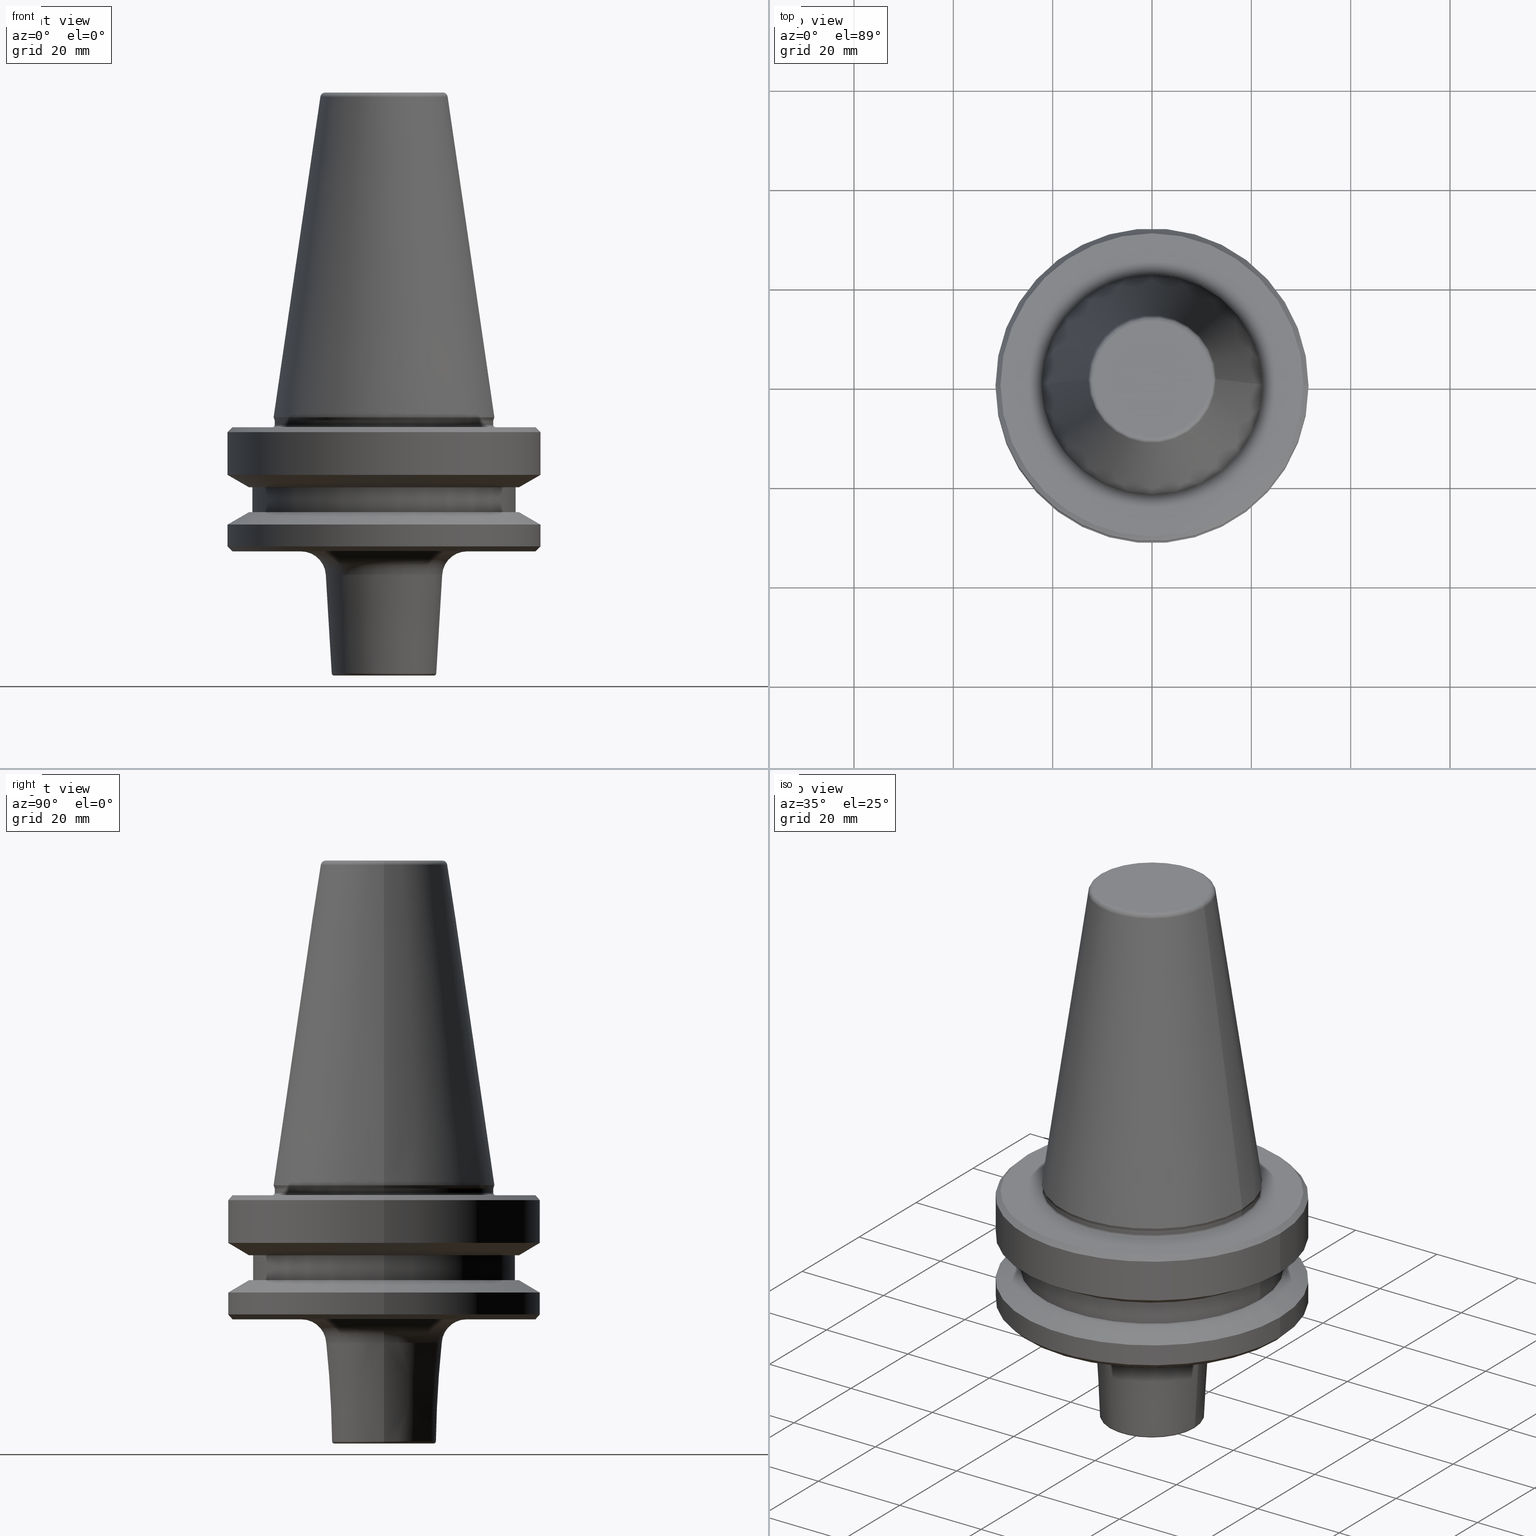
[diagram: canonical four-view strip — front | top / right | iso, engineering-drawing reading convention]
A machine part, canonical four-view strip (front | top / right | iso — engineering-drawing reading convention). The complete STEP part file that produces these views, byte-faithful:
ISO-10303-21;
HEADER;
FILE_DESCRIPTION (( 'STEP AP203' ),
    '1' );
FILE_NAME ('BT40 MCA12 025 AD+B-2.5G 25000 SL.STEP',
    '2019-05-24T10:07:04',
    ( '' ),
    ( '' ),
    'SwSTEP 2.0',
    'SolidWorks 2014',
    '' );
FILE_SCHEMA (( 'CONFIG_CONTROL_DESIGN' ));
ENDSEC;

DATA;
#1 = AXIS2_PLACEMENT_3D ( 'NONE', #386, #12, #701 ) ;
#2 = ORIENTED_EDGE ( 'NONE', *, *, #177, .T. ) ;
#3 = CLOSED_SHELL ( 'NONE', ( #37, #587, #301, #326, #89, #711, #955, #258, #135, #664, #49, #822, #22, #9, #68, #288, #67, #36, #345, #862, #1003, #227, #45, #1013, #279, #995, #91, #1054, #44, #307, #296, #984, #669, #58, #212, #609, #61, #626 ) ) ;
#4 = ORIENTED_EDGE ( 'NONE', *, *, #764, .T. ) ;
#5 = AXIS2_PLACEMENT_3D ( 'NONE', #501, #79, #732 ) ;
#6 = VERTEX_POINT ( 'NONE', #226 ) ;
#7 = ORIENTED_EDGE ( 'NONE', *, *, #428, .T. ) ;
#8 = LINE ( 'NONE', #756, #853 ) ;
#9 = ADVANCED_FACE ( 'NONE', ( #189 ), #384, .T. ) ;
#10 = DIRECTION ( 'NONE',  ( -0.0000000000000000000, -0.0000000000000000000, 1.000000000000000000 ) ) ;
#11 = ADVANCED_BREP_SHAPE_REPRESENTATION ( 'BT40 MCA12 025 AD+B-2.5G 25000 SL', ( #334, #647 ), #382 ) ;
#12 = DIRECTION ( 'NONE',  ( -0.0000000000000000000, -0.0000000000000000000, 1.000000000000000000 ) ) ;
#13 = COORDINATED_UNIVERSAL_TIME_OFFSET ( 5, 30, .AHEAD. ) ;
#14 = FACE_OUTER_BOUND ( 'NONE', #324, .T. ) ;
#15 = EDGE_CURVE ( 'NONE', #930, #519, #591, .T. ) ;
#16 = VECTOR ( 'NONE', #19, 1000.000000000000000 ) ;
#17 = APPROVAL ( #438, 'UNSPECIFIED' ) ;
#18 = ORIENTED_EDGE ( 'NONE', *, *, #605, .F. ) ;
#19 = DIRECTION ( 'NONE',  ( -0.0000000000000000000, -0.0000000000000000000, 1.000000000000000000 ) ) ;
#20 = DIRECTION ( 'NONE',  ( 1.000000000000000000, 0.0000000000000000000, 0.0000000000000000000 ) ) ;
#21 = ORIENTED_EDGE ( 'NONE', *, *, #177, .F. ) ;
#22 = ADVANCED_FACE ( 'NONE', ( #801 ), #705, .T. ) ;
#23 = CYLINDRICAL_SURFACE ( 'NONE', #5, 26.50000000000019200 ) ;
#24 = CARTESIAN_POINT ( 'NONE',  ( 0.0000000000000000000, 0.0000000000000000000, -97.10053854636829800 ) ) ;
#25 = CARTESIAN_POINT ( 'NONE',  ( -31.50000000000008500, 3.857637417314172900E-015, -87.00014200631733300 ) ) ;
#26 = CONICAL_SURFACE ( 'NONE', #933, 22.22499999999993700, 0.3490658503994643600 ) ;
#27 = AXIS2_PLACEMENT_3D ( 'NONE', #817, #896, #968 ) ;
#28 = DIRECTION ( 'NONE',  ( -0.05989229072794660700, 7.334690213358251100E-018, 0.9982048454657787000 ) ) ;
#29 = DIRECTION ( 'NONE',  ( -1.000000000000000000, 0.0000000000000000000, 0.0000000000000000000 ) ) ;
#30 = CARTESIAN_POINT ( 'NONE',  ( 0.0000000000000000000, 0.0000000000000000000, -65.95190515433003500 ) ) ;
#31 = CARTESIAN_POINT ( 'NONE',  ( 0.0000000000000000000, 0.0000000000000000000, -66.90000000000040400 ) ) ;
#32 = DIRECTION ( 'NONE',  ( -0.0000000000000000000, -0.0000000000000000000, 1.000000000000000000 ) ) ;
#33 = EDGE_CURVE ( 'NONE', #527, #391, #167, .T. ) ;
#34 = CARTESIAN_POINT ( 'NONE',  ( -26.50000000000019200, 3.245314017740509400E-015, -84.50000000000068200 ) ) ;
#35 = DIRECTION ( 'NONE',  ( 1.000000000000000000, 0.0000000000000000000, 0.0000000000000000000 ) ) ;
#36 = ADVANCED_FACE ( 'NONE', ( #99, #1016 ), #433, .F. ) ;
#37 = ADVANCED_FACE ( 'NONE', ( #916 ), #680, .T. ) ;
#38 = DIRECTION ( 'NONE',  ( -0.0000000000000000000, -0.0000000000000000000, 1.000000000000000000 ) ) ;
#39 = EDGE_CURVE ( 'NONE', #713, #504, #892, .T. ) ;
#40 = ORIENTED_EDGE ( 'NONE', *, *, #162, .T. ) ;
#41 = VERTEX_POINT ( 'NONE', #233 ) ;
#42 = CIRCLE ( 'NONE', #1004, 0.4999999999996951300 ) ;
#43 = AXIS2_PLACEMENT_3D ( 'NONE', #1030, #978, #943 ) ;
#44 = ADVANCED_FACE ( 'NONE', ( #57 ), #309, .F. ) ;
#45 = ADVANCED_FACE ( 'NONE', ( #473 ), #23, .T. ) ;
#46 = LOCAL_TIME ( 15, 37, 4.000000000000000000, #269 ) ;
#47 = TOROIDAL_SURFACE ( 'NONE', #541, 11.82266927716813000, 0.9999999999999696900 ) ;
#48 = CIRCLE ( 'NONE', #1029, 10.02910080854555400 ) ;
#49 = ADVANCED_FACE ( 'NONE', ( #493 ), #230, .T. ) ;
#50 = DIRECTION ( 'NONE',  ( 1.000000000000000000, 0.0000000000000000000, 0.0000000000000000000 ) ) ;
#51 = AXIS2_PLACEMENT_3D ( 'NONE', #767, #289, #373 ) ;
#52 = ORIENTED_EDGE ( 'NONE', *, *, #155, .T. ) ;
#53 = DIRECTION ( 'NONE',  ( 1.000000000000000000, 0.0000000000000000000, 0.0000000000000000000 ) ) ;
#54 = ORIENTED_EDGE ( 'NONE', *, *, #448, .F. ) ;
#55 = ORIENTED_EDGE ( 'NONE', *, *, #483, .T. ) ;
#56 = EDGE_LOOP ( 'NONE', ( #873, #611, #577, #196 ) ) ;
#57 = FACE_OUTER_BOUND ( 'NONE', #937, .T. ) ;
#58 = ADVANCED_FACE ( 'NONE', ( #87 ), #444, .T. ) ;
#59 = LINE ( 'NONE', #685, #475 ) ;
#60 = EDGE_CURVE ( 'NONE', #304, #82, #867, .T. ) ;
#61 = ADVANCED_FACE ( 'NONE', ( #657 ), #280, .T. ) ;
#62 = APPLICATION_CONTEXT ( 'configuration controlled 3d designs of mechanical parts and assemblies' ) ;
#63 = ORIENTED_EDGE ( 'NONE', *, *, #306, .F. ) ;
#64 = CARTESIAN_POINT ( 'NONE',  ( 0.0000000000000000000, 0.0000000000000000000, -67.40000000000034700 ) ) ;
#65 = EDGE_LOOP ( 'NONE', ( #479, #197 ) ) ;
#66 = AXIS2_PLACEMENT_3D ( 'NONE', #615, #38, #531 ) ;
#67 = ADVANCED_FACE ( 'NONE', ( #251 ), #836, .F. ) ;
#68 = ADVANCED_FACE ( 'NONE', ( #201 ), #395, .T. ) ;
#69 = APPROVAL_STATUS ( 'not_yet_approved' ) ;
#70 = ORIENTED_EDGE ( 'NONE', *, *, #467, .T. ) ;
#71 = ORIENTED_EDGE ( 'NONE', *, *, #571, .T. ) ;
#72 = DIRECTION ( 'NONE',  ( 0.0000000000000000000, -1.000000000000000000, 0.0000000000000000000 ) ) ;
#73 = DIRECTION ( 'NONE',  ( 1.000000000000000000, 0.0000000000000000000, 0.0000000000000000000 ) ) ;
#74 = VERTEX_POINT ( 'NONE', #185 ) ;
#75 = AXIS2_PLACEMENT_3D ( 'NONE', #123, #176, #737 ) ;
#76 = APPROVAL_DATE_TIME ( #297, #17 ) ;
#77 = FACE_OUTER_BOUND ( 'NONE', #831, .T. ) ;
#78 = DIRECTION ( 'NONE',  ( 1.000000000000000000, 0.0000000000000000000, 0.0000000000000000000 ) ) ;
#79 = DIRECTION ( 'NONE',  ( -0.0000000000000000000, -0.0000000000000000000, 1.000000000000000000 ) ) ;
#80 = ORIENTED_EDGE ( 'NONE', *, *, #1049, .F. ) ;
#81 = EDGE_CURVE ( 'NONE', #246, #738, #604, .T. ) ;
#82 = VERTEX_POINT ( 'NONE', #860 ) ;
#83 = ORIENTED_EDGE ( 'NONE', *, *, #941, .F. ) ;
#84 = DIRECTION ( 'NONE',  ( 1.224646799147353200E-016, 1.000000000000000000, 0.0000000000000000000 ) ) ;
#85 = CC_DESIGN_APPROVAL ( #17, ( #1020 ) ) ;
#86 = DIRECTION ( 'NONE',  ( 1.000000000000000000, 0.0000000000000000000, 0.0000000000000000000 ) ) ;
#87 = FACE_OUTER_BOUND ( 'NONE', #690, .T. ) ;
#88 = DATE_TIME_ROLE ( 'creation_date' ) ;
#89 = ADVANCED_FACE ( 'NONE', ( #1031 ), #791, .T. ) ;
#90 = CIRCLE ( 'NONE', #164, 31.50000000000008500 ) ;
#91 = ADVANCED_FACE ( 'NONE', ( #1050 ), #370, .T. ) ;
#92 = CARTESIAN_POINT ( 'NONE',  ( -27.16962701892322600, 3.592478546794674900E-015, -79.50000000000012800 ) ) ;
#93 = CARTESIAN_POINT ( 'NONE',  ( 22.02412295168553100, 0.0000000000000000000, -65.95190515433003500 ) ) ;
#94 = AXIS2_PLACEMENT_3D ( 'NONE', #420, #497, #964 ) ;
#95 = DIRECTION ( 'NONE',  ( -0.0000000000000000000, -0.0000000000000000000, 1.000000000000000000 ) ) ;
#96 = EDGE_LOOP ( 'NONE', ( #794, #2, #952, #248 ) ) ;
#97 = DIRECTION ( 'NONE',  ( -0.0000000000000000000, -0.0000000000000000000, 1.000000000000000000 ) ) ;
#98 = DIRECTION ( 'NONE',  ( 1.000000000000000000, 0.0000000000000000000, 0.0000000000000000000 ) ) ;
#99 = FACE_OUTER_BOUND ( 'NONE', #429, .T. ) ;
#100 = EDGE_LOOP ( 'NONE', ( #52, #346, #181, #889 ) ) ;
#101 = CARTESIAN_POINT ( 'NONE',  ( 0.0000000000000000000, 0.0000000000000000000, -87.00014200631733300 ) ) ;
#102 = VERTEX_POINT ( 'NONE', #160 ) ;
#103 = CARTESIAN_POINT ( 'NONE',  ( 0.0000000000000000000, 0.0000000000000000000, -68.40000000000046000 ) ) ;
#104 = EDGE_CURVE ( 'NONE', #998, #229, #815, .T. ) ;
#105 = EDGE_LOOP ( 'NONE', ( #810, #158, #278, #739 ) ) ;
#106 = EDGE_LOOP ( 'NONE', ( #21, #264, #392, #667 ) ) ;
#107 = SECURITY_CLASSIFICATION_LEVEL ( 'unclassified' ) ;
#108 = DIRECTION ( 'NONE',  ( -0.0000000000000000000, -0.0000000000000000000, 1.000000000000000000 ) ) ;
#109 = EDGE_CURVE ( 'NONE', #229, #998, #421, .T. ) ;
#110 = APPROVAL_PERSON_ORGANIZATION ( #329, #17, #636 ) ;
#111 = LINE ( 'NONE', #520, #958 ) ;
#112 = AXIS2_PLACEMENT_3D ( 'NONE', #612, #452, #396 ) ;
#113 = AXIS2_PLACEMENT_3D ( 'NONE', #617, #847, #613 ) ;
#114 = LINE ( 'NONE', #918, #311 ) ;
#115 = CARTESIAN_POINT ( 'NONE',  ( 0.0000000000000000000, 0.0000000000000000000, -92.40000000000803500 ) ) ;
#116 = EDGE_CURVE ( 'NONE', #275, #861, #178, .T. ) ;
#117 = VECTOR ( 'NONE', #512, 1000.000000000000000 ) ;
#118 = CARTESIAN_POINT ( 'NONE',  ( 22.49999999999996400, 0.0000000000000000000, -67.40000000000034700 ) ) ;
#119 = EDGE_LOOP ( 'NONE', ( #377, #198, #150, #676 ) ) ;
#120 = ORIENTED_EDGE ( 'NONE', *, *, #231, .T. ) ;
#121 = DIRECTION ( 'NONE',  ( 1.000000000000000000, 0.0000000000000000000, 0.0000000000000000000 ) ) ;
#122 = VECTOR ( 'NONE', #1044, 1000.000000000000000 ) ;
#123 = CARTESIAN_POINT ( 'NONE',  ( 0.0000000000000000000, 0.0000000000000000000, -1.000000000000334000 ) ) ;
#124 = ORGANIZATION ( 'UNSPECIFIED', 'UNSPECIFIED', '' ) ;
#125 = AXIS2_PLACEMENT_3D ( 'NONE', #929, #1007, #376 ) ;
#126 = ORIENTED_EDGE ( 'NONE', *, *, #60, .F. ) ;
#127 = EDGE_LOOP ( 'NONE', ( #557, #546, #905, #637 ) ) ;
#128 = CARTESIAN_POINT ( 'NONE',  ( 31.50000000000008500, 0.0000000000000000000, -91.40000000000037500 ) ) ;
#129 = CARTESIAN_POINT ( 'NONE',  ( 31.50000000000008500, 0.0000000000000000000, -91.40000000000037500 ) ) ;
#130 = CARTESIAN_POINT ( 'NONE',  ( -12.81220206925736900, 0.0000000000000000000, -0.8556918111122247000 ) ) ;
#131 = CARTESIAN_POINT ( 'NONE',  ( -22.22499999999993700, 2.721777511104985000E-015, -65.40000000000057400 ) ) ;
#132 = COORDINATED_UNIVERSAL_TIME_OFFSET ( 5, 30, .AHEAD. ) ;
#133 = CIRCLE ( 'NONE', #779, 11.82266927716813000 ) ;
#134 = CARTESIAN_POINT ( 'NONE',  ( -30.49999999999997200, 0.0000000000000000000, -67.40000000000034700 ) ) ;
#135 = ADVANCED_FACE ( 'NONE', ( #1001 ), #347, .T. ) ;
#136 = DIRECTION ( 'NONE',  ( 0.0000000000000000000, -1.000000000000000000, 0.0000000000000000000 ) ) ;
#137 = AXIS2_PLACEMENT_3D ( 'NONE', #631, #542, #425 ) ;
#138 = DIRECTION ( 'NONE',  ( -0.0000000000000000000, -0.0000000000000000000, 1.000000000000000000 ) ) ;
#139 = ORIENTED_EDGE ( 'NONE', *, *, #960, .T. ) ;
#140 = CARTESIAN_POINT ( 'NONE',  ( 22.00000000000002100, 0.0000000000000000000, 6.357346922996331500 ) ) ;
#141 = EDGE_CURVE ( 'NONE', #618, #824, #553, .T. ) ;
#142 = DIRECTION ( 'NONE',  ( 1.000000000000000000, 0.0000000000000000000, 0.0000000000000000000 ) ) ;
#143 = FACE_OUTER_BOUND ( 'NONE', #704, .T. ) ;
#144 = CC_DESIGN_PERSON_AND_ORGANIZATION_ASSIGNMENT ( #907, #715, ( #1020 ) ) ;
#145 = CARTESIAN_POINT ( 'NONE',  ( 16.70899191454727300, 0.0000000000000000000, -92.40000000000803500 ) ) ;
#146 = FACE_OUTER_BOUND ( 'NONE', #402, .T. ) ;
#147 = CARTESIAN_POINT ( 'NONE',  ( 0.0000000000000000000, 0.0000000000000000000, -66.90000000000040400 ) ) ;
#148 = AXIS2_PLACEMENT_3D ( 'NONE', #417, #574, #656 ) ;
#149 = EDGE_LOOP ( 'NONE', ( #188, #1039, #809, #675 ) ) ;
#150 = ORIENTED_EDGE ( 'NONE', *, *, #375, .F. ) ;
#151 = DATE_TIME_ROLE ( 'classification_date' ) ;
#152 = ORIENTED_EDGE ( 'NONE', *, *, #394, .F. ) ;
#153 = VECTOR ( 'NONE', #594, 1000.000000000000000 ) ;
#154 = DIRECTION ( 'NONE',  ( -1.000000000000000000, 0.0000000000000000000, -0.0000000000000000000 ) ) ;
#155 = EDGE_CURVE ( 'NONE', #1022, #513, #766, .T. ) ;
#156 = DIRECTION ( 'NONE',  ( -0.0000000000000000000, -0.0000000000000000000, 1.000000000000000000 ) ) ;
#157 = VERTEX_POINT ( 'NONE', #708 ) ;
#158 = ORIENTED_EDGE ( 'NONE', *, *, #614, .T. ) ;
#159 = LOCAL_TIME ( 15, 37, 4.000000000000000000, #378 ) ;
#160 = CARTESIAN_POINT ( 'NONE',  ( -31.50000000000008500, 3.857637417314172900E-015, -68.40000000000046000 ) ) ;
#161 = EDGE_LOOP ( 'NONE', ( #418, #319, #662, #126 ) ) ;
#162 = EDGE_CURVE ( 'NONE', #246, #102, #582, .T. ) ;
#163 = CARTESIAN_POINT ( 'NONE',  ( 0.0000000000000000000, 0.0000000000000000000, -97.40000000000804900 ) ) ;
#164 = AXIS2_PLACEMENT_3D ( 'NONE', #722, #644, #241 ) ;
#165 = CARTESIAN_POINT ( 'NONE',  ( -22.49999999999996400, 2.755455298081540400E-015, -66.90000000000040400 ) ) ;
#166 = CARTESIAN_POINT ( 'NONE',  ( 0.0000000000000000000, 0.0000000000000000000, -87.00014200631733300 ) ) ;
#167 = CIRCLE ( 'NONE', #638, 0.9999999999999696900 ) ;
#168 = CIRCLE ( 'NONE', #236, 0.4999999999996985700 ) ;
#169 = APPROVAL_STATUS ( 'not_yet_approved' ) ;
#170 = AXIS2_PLACEMENT_3D ( 'NONE', #760, #206, #845 ) ;
#171 = CARTESIAN_POINT ( 'NONE',  ( -11.82266927716813000, 1.508450817090336800E-015, -4.440892098500626200E-013 ) ) ;
#172 = VERTEX_POINT ( 'NONE', #777 ) ;
#173 = FACE_OUTER_BOUND ( 'NONE', #890, .T. ) ;
#174 = CARTESIAN_POINT ( 'NONE',  ( 0.0000000000000000000, 0.0000000000000000000, -84.50000000000068200 ) ) ;
#175 = EDGE_LOOP ( 'NONE', ( #731, #419, #709, #762 ) ) ;
#176 = DIRECTION ( 'NONE',  ( -0.0000000000000000000, -0.0000000000000000000, 1.000000000000000000 ) ) ;
#177 = EDGE_CURVE ( 'NONE', #550, #1015, #981, .T. ) ;
#178 = CIRCLE ( 'NONE', #565, 10.02910080854555400 ) ;
#179 = DIRECTION ( 'NONE',  ( -0.0000000000000000000, -0.0000000000000000000, 1.000000000000000000 ) ) ;
#180 = PRODUCT_DEFINITION_SHAPE ( 'NONE', 'NONE',  #748 ) ;
#181 = ORIENTED_EDGE ( 'NONE', *, *, #1033, .F. ) ;
#182 = DIRECTION ( 'NONE',  ( 1.000000000000000000, 0.0000000000000000000, 0.0000000000000000000 ) ) ;
#183 = AXIS2_PLACEMENT_3D ( 'NONE', #769, #689, #291 ) ;
#184 = ORIENTED_EDGE ( 'NONE', *, *, #162, .F. ) ;
#185 = CARTESIAN_POINT ( 'NONE',  ( 31.50000000000008500, 0.0000000000000000000, -68.40000000000046000 ) ) ;
#186 = AXIS2_PLACEMENT_3D ( 'NONE', #927, #996, #356 ) ;
#187 = CARTESIAN_POINT ( 'NONE',  ( -10.52820323127814300, 1.289333038795759900E-015, -116.9299461453723300 ) ) ;
#188 = ORIENTED_EDGE ( 'NONE', *, *, #818, .F. ) ;
#189 = FACE_OUTER_BOUND ( 'NONE', #295, .T. ) ;
#190 = CIRCLE ( 'NONE', #125, 26.50000000000019200 ) ;
#191 = EDGE_CURVE ( 'NONE', #391, #504, #133, .T. ) ;
#192 = CIRCLE ( 'NONE', #753, 0.4000000000001502400 ) ;
#193 = CC_DESIGN_PERSON_AND_ORGANIZATION_ASSIGNMENT ( #697, #786, ( #1020 ) ) ;
#194 = CIRCLE ( 'NONE', #255, 10.52820323127814300 ) ;
#195 = CARTESIAN_POINT ( 'NONE',  ( 0.0000000000000000000, 0.0000000000000000000, -76.99985799368391800 ) ) ;
#196 = ORIENTED_EDGE ( 'NONE', *, *, #245, .T. ) ;
#197 = ORIENTED_EDGE ( 'NONE', *, *, #104, .F. ) ;
#198 = ORIENTED_EDGE ( 'NONE', *, *, #818, .T. ) ;
#199 = DIRECTION ( 'NONE',  ( 0.0000000000000000000, 0.0000000000000000000, -1.000000000000000000 ) ) ;
#200 = AXIS2_PLACEMENT_3D ( 'NONE', #174, #812, #253 ) ;
#201 = FACE_OUTER_BOUND ( 'NONE', #96, .T. ) ;
#202 = DIRECTION ( 'NONE',  ( -0.0000000000000000000, -0.0000000000000000000, 1.000000000000000000 ) ) ;
#203 = DIRECTION ( 'NONE',  ( 1.000000000000000000, 0.0000000000000000000, 0.0000000000000000000 ) ) ;
#204 = CIRCLE ( 'NONE', #268, 0.4999999999999449300 ) ;
#205 = CARTESIAN_POINT ( 'NONE',  ( 0.0000000000000000000, 0.0000000000000000000, -65.40000000000057400 ) ) ;
#206 = DIRECTION ( 'NONE',  ( -0.0000000000000000000, -0.0000000000000000000, 1.000000000000000000 ) ) ;
#207 = CARTESIAN_POINT ( 'NONE',  ( -12.81220206925736900, 0.0000000000000000000, -0.8556918111122247000 ) ) ;
#208 = EDGE_CURVE ( 'NONE', #287, #886, #563, .T. ) ;
#209 = DIRECTION ( 'NONE',  ( -0.0000000000000000000, -0.0000000000000000000, 1.000000000000000000 ) ) ;
#210 = ORIENTED_EDGE ( 'NONE', *, *, #155, .F. ) ;
#211 = CARTESIAN_POINT ( 'NONE',  ( 0.0000000000000000000, 0.0000000000000000000, -92.40000000000803500 ) ) ;
#212 = ADVANCED_FACE ( 'NONE', ( #353 ), #283, .F. ) ;
#213 = EDGE_CURVE ( 'NONE', #652, #216, #111, .T. ) ;
#214 = CARTESIAN_POINT ( 'NONE',  ( 11.82266927716813000, 0.0000000000000000000, -1.000000000000334000 ) ) ;
#215 = AXIS2_PLACEMENT_3D ( 'NONE', #327, #765, #73 ) ;
#216 = VERTEX_POINT ( 'NONE', #997 ) ;
#217 = ORIENTED_EDGE ( 'NONE', *, *, #975, .T. ) ;
#218 = LINE ( 'NONE', #131, #385 ) ;
#219 = CARTESIAN_POINT ( 'NONE',  ( -10.02910080854555400, 1.258771829573451900E-015, -117.4000000000080500 ) ) ;
#220 = CARTESIAN_POINT ( 'NONE',  ( 11.82266927716813000, 0.0000000000000000000, -4.440892098500626200E-013 ) ) ;
#221 = CARTESIAN_POINT ( 'NONE',  ( 31.50000000000008500, 0.0000000000000000000, -87.00014200631733300 ) ) ;
#222 = APPROVAL_DATE_TIME ( #434, #416 ) ;
#223 = FACE_OUTER_BOUND ( 'NONE', #348, .T. ) ;
#224 = CIRCLE ( 'NONE', #27, 26.50000000000019200 ) ;
#225 = AXIS2_PLACEMENT_3D ( 'NONE', #623, #302, #787 ) ;
#226 = CARTESIAN_POINT ( 'NONE',  ( 27.16962701892256100, 3.592478546794633900E-015, -84.50000000000068200 ) ) ;
#227 = ADVANCED_FACE ( 'NONE', ( #935, #330 ), #755, .T. ) ;
#228 = EDGE_LOOP ( 'NONE', ( #878, #55 ) ) ;
#229 = VERTEX_POINT ( 'NONE', #118 ) ;
#230 = CONICAL_SURFACE ( 'NONE', #1011, 31.50000000000008500, 1.047197551196597400 ) ;
#231 = EDGE_CURVE ( 'NONE', #364, #972, #721, .T. ) ;
#232 = FACE_OUTER_BOUND ( 'NONE', #879, .T. ) ;
#233 = CARTESIAN_POINT ( 'NONE',  ( 31.50000000000008500, 0.0000000000000000000, -76.99985799368391800 ) ) ;
#234 = CARTESIAN_POINT ( 'NONE',  ( 0.0000000000000000000, 0.0000000000000000000, 0.0000000000000000000 ) ) ;
#235 = DIRECTION ( 'NONE',  ( -0.8660254037844332700, 0.0000000000000000000, -0.5000000000000093300 ) ) ;
#236 = AXIS2_PLACEMENT_3D ( 'NONE', #757, #925, #683 ) ;
#237 = ORIENTED_EDGE ( 'NONE', *, *, #660, .T. ) ;
#238 = ORIENTED_EDGE ( 'NONE', *, *, #628, .F. ) ;
#239 = LINE ( 'NONE', #768, #431 ) ;
#240 = AXIS2_PLACEMENT_3D ( 'NONE', #163, #521, #371 ) ;
#241 = DIRECTION ( 'NONE',  ( 1.000000000000000000, 0.0000000000000000000, 0.0000000000000000000 ) ) ;
#242 = APPROVAL_PERSON_ORGANIZATION ( #462, #416, #584 ) ;
#243 = CONICAL_SURFACE ( 'NONE', #277, 31.50000000000008500, 1.047197551196597400 ) ;
#244 = CIRCLE ( 'NONE', #919, 31.50000000000008500 ) ;
#245 = EDGE_CURVE ( 'NONE', #519, #930, #535, .T. ) ;
#246 = VERTEX_POINT ( 'NONE', #840 ) ;
#247 = SECURITY_CLASSIFICATION ( '', '', #107 ) ;
#248 = ORIENTED_EDGE ( 'NONE', *, *, #1018, .F. ) ;
#249 = DIRECTION ( 'NONE',  ( 0.0000000000000000000, 0.0000000000000000000, -1.000000000000000000 ) ) ;
#250 = DIRECTION ( 'NONE',  ( -0.0000000000000000000, -0.0000000000000000000, 1.000000000000000000 ) ) ;
#251 = FACE_OUTER_BOUND ( 'NONE', #851, .T. ) ;
#252 = CIRCLE ( 'NONE', #982, 22.02412295168554100 ) ;
#253 = DIRECTION ( 'NONE',  ( 1.000000000000000000, 0.0000000000000000000, 0.0000000000000000000 ) ) ;
#254 = DIRECTION ( 'NONE',  ( -0.0000000000000000000, -0.0000000000000000000, 1.000000000000000000 ) ) ;
#255 = AXIS2_PLACEMENT_3D ( 'NONE', #544, #506, #50 ) ;
#256 = CARTESIAN_POINT ( 'NONE',  ( -22.02412295168553100, 2.697177167680943700E-015, -65.95190515433003500 ) ) ;
#257 = CARTESIAN_POINT ( 'NONE',  ( 0.0000000000000000000, 0.0000000000000000000, 6.357346922996331500 ) ) ;
#258 = ADVANCED_FACE ( 'NONE', ( #77 ), #299, .F. ) ;
#259 = DIRECTION ( 'NONE',  ( 1.000000000000000000, 0.0000000000000000000, 0.0000000000000000000 ) ) ;
#260 = CARTESIAN_POINT ( 'NONE',  ( 0.0000000000000000000, 0.0000000000000000000, -92.40000000000803500 ) ) ;
#261 = DIRECTION ( 'NONE',  ( -0.0000000000000000000, -0.0000000000000000000, 1.000000000000000000 ) ) ;
#262 = EDGE_CURVE ( 'NONE', #590, #157, #908, .T. ) ;
#263 = VERTEX_POINT ( 'NONE', #129 ) ;
#264 = ORIENTED_EDGE ( 'NONE', *, *, #944, .T. ) ;
#265 = ORIENTED_EDGE ( 'NONE', *, *, #428, .F. ) ;
#266 = CIRCLE ( 'NONE', #950, 30.49999999999241900 ) ;
#267 = EDGE_CURVE ( 'NONE', #527, #713, #698, .T. ) ;
#268 = AXIS2_PLACEMENT_3D ( 'NONE', #165, #798, #977 ) ;
#269 = COORDINATED_UNIVERSAL_TIME_OFFSET ( 5, 30, .AHEAD. ) ;
#270 = FACE_OUTER_BOUND ( 'NONE', #175, .T. ) ;
#271 = DIRECTION ( 'NONE',  ( 1.000000000000000000, 0.0000000000000000000, 0.0000000000000000000 ) ) ;
#272 = LINE ( 'NONE', #734, #464 ) ;
#273 = DIRECTION ( 'NONE',  ( -0.0000000000000000000, -0.0000000000000000000, 1.000000000000000000 ) ) ;
#274 = ORIENTED_EDGE ( 'NONE', *, *, #920, .T. ) ;
#275 = VERTEX_POINT ( 'NONE', #219 ) ;
#276 = ORIENTED_EDGE ( 'NONE', *, *, #799, .F. ) ;
#277 = AXIS2_PLACEMENT_3D ( 'NONE', #195, #688, #35 ) ;
#278 = ORIENTED_EDGE ( 'NONE', *, *, #678, .T. ) ;
#279 = ADVANCED_FACE ( 'NONE', ( #270 ), #243, .T. ) ;
#280 = TOROIDAL_SURFACE ( 'NONE', #186, 10.02910080854555400, 0.4999999999996980700 ) ;
#281 = CYLINDRICAL_SURFACE ( 'NONE', #877, 22.00000000000002100 ) ;
#282 = DIRECTION ( 'NONE',  ( 1.000000000000000000, 0.0000000000000000000, 0.0000000000000000000 ) ) ;
#283 = PLANE ( 'NONE',  #940 ) ;
#284 = EDGE_CURVE ( 'NONE', #532, #457, #463, .T. ) ;
#285 = DIRECTION ( 'NONE',  ( 1.000000000000000000, 0.0000000000000000000, 0.0000000000000000000 ) ) ;
#286 = CARTESIAN_POINT ( 'NONE',  ( 0.0000000000000000000, 0.0000000000000000000, -79.50000000000012800 ) ) ;
#287 = VERTEX_POINT ( 'NONE', #864 ) ;
#288 = ADVANCED_FACE ( 'NONE', ( #509 ), #672, .F. ) ;
#289 = DIRECTION ( 'NONE',  ( -0.0000000000000000000, -0.0000000000000000000, 1.000000000000000000 ) ) ;
#290 = DIRECTION ( 'NONE',  ( -0.0000000000000000000, -0.0000000000000000000, 1.000000000000000000 ) ) ;
#291 = DIRECTION ( 'NONE',  ( 1.000000000000000000, 0.0000000000000000000, 0.0000000000000000000 ) ) ;
#292 = AXIS2_PLACEMENT_3D ( 'NONE', #30, #366, #285 ) ;
#293 = CARTESIAN_POINT ( 'NONE',  ( 0.0000000000000000000, 0.0000000000000000000, -4.440892098500626200E-013 ) ) ;
#294 = ORIENTED_EDGE ( 'NONE', *, *, #912, .F. ) ;
#295 = EDGE_LOOP ( 'NONE', ( #71, #717, #560, #782 ) ) ;
#296 = ADVANCED_FACE ( 'NONE', ( #883 ), #485, .F. ) ;
#297 = DATE_AND_TIME ( #508, #720 ) ;
#298 = AXIS2_PLACEMENT_3D ( 'NONE', #533, #911, #259 ) ;
#299 = TOROIDAL_SURFACE ( 'NONE', #170, 22.49999999999996400, 0.4999999999999449300 ) ;
#300 = DIRECTION ( 'NONE',  ( -1.000000000000000000, 0.0000000000000000000, -0.0000000000000000000 ) ) ;
#301 = ADVANCED_FACE ( 'NONE', ( #649 ), #47, .T. ) ;
#302 = DIRECTION ( 'NONE',  ( -0.0000000000000000000, -0.0000000000000000000, 1.000000000000000000 ) ) ;
#303 = PLANE ( 'NONE',  #581 ) ;
#304 = VERTEX_POINT ( 'NONE', #487 ) ;
#305 = ORIENTED_EDGE ( 'NONE', *, *, #321, .F. ) ;
#306 = EDGE_CURVE ( 'NONE', #457, #216, #435, .T. ) ;
#307 = ADVANCED_FACE ( 'NONE', ( #14 ), #624, .T. ) ;
#308 = DIRECTION ( 'NONE',  ( 0.8660254037844332700, 1.060575238724900300E-016, -0.5000000000000093300 ) ) ;
#309 = TOROIDAL_SURFACE ( 'NONE', #957, 22.49999999999996400, 0.4999999999999449300 ) ;
#310 = CC_DESIGN_PERSON_AND_ORGANIZATION_ASSIGNMENT ( #484, #312, ( #247 ) ) ;
#311 = VECTOR ( 'NONE', #993, 1000.000000000000000 ) ;
#312 = PERSON_AND_ORGANIZATION_ROLE ( 'classification_officer' ) ;
#313 = ORIENTED_EDGE ( 'NONE', *, *, #60, .T. ) ;
#314 = DIRECTION ( 'NONE',  ( 1.000000000000000000, 0.0000000000000000000, 0.0000000000000000000 ) ) ;
#315 = AXIS2_PLACEMENT_3D ( 'NONE', #588, #403, #142 ) ;
#316 = DIRECTION ( 'NONE',  ( -0.0000000000000000000, -0.0000000000000000000, 1.000000000000000000 ) ) ;
#317 = ORIENTED_EDGE ( 'NONE', *, *, #747, .T. ) ;
#318 = ORIENTED_EDGE ( 'NONE', *, *, #639, .T. ) ;
#319 = ORIENTED_EDGE ( 'NONE', *, *, #448, .T. ) ;
#320 = DIRECTION ( 'NONE',  ( 1.000000000000000000, 0.0000000000000000000, 0.0000000000000000000 ) ) ;
#321 = EDGE_CURVE ( 'NONE', #738, #74, #1043, .T. ) ;
#322 = ORIENTED_EDGE ( 'NONE', *, *, #747, .F. ) ;
#323 = DIRECTION ( 'NONE',  ( 1.000000000000000000, 0.0000000000000000000, 0.0000000000000000000 ) ) ;
#324 = EDGE_LOOP ( 'NONE', ( #468, #436, #578, #367 ) ) ;
#325 = ORIENTED_EDGE ( 'NONE', *, *, #536, .T. ) ;
#326 = ADVANCED_FACE ( 'NONE', ( #411 ), #633, .T. ) ;
#327 = CARTESIAN_POINT ( 'NONE',  ( 0.0000000000000000000, 0.0000000000000000000, -79.50000000000012800 ) ) ;
#328 = DIRECTION ( 'NONE',  ( 1.000000000000000000, 0.0000000000000000000, 0.0000000000000000000 ) ) ;
#329 = PERSON_AND_ORGANIZATION ( #545, #124 ) ;
#330 = FACE_BOUND ( 'NONE', #528, .T. ) ;
#331 = EDGE_CURVE ( 'NONE', #513, #1022, #806, .T. ) ;
#332 = CARTESIAN_POINT ( 'NONE',  ( 0.0000000000000000000, 0.0000000000000000000, -65.40000000000057400 ) ) ;
#333 = ORIENTED_EDGE ( 'NONE', *, *, #39, .T. ) ;
#334 = MANIFOLD_SOLID_BREP ( 'Revolve1', #3 ) ;
#335 = CARTESIAN_POINT ( 'NONE',  ( 0.0000000000000000000, 0.0000000000000000000, 6.357346922996331500 ) ) ;
#336 = APPLICATION_CONTEXT ( 'configuration controlled 3d designs of mechanical parts and assemblies' ) ;
#337 = CIRCLE ( 'NONE', #665, 31.50000000000008500 ) ;
#338 = AXIS2_PLACEMENT_3D ( 'NONE', #474, #797, #469 ) ;
#339 = DIRECTION ( 'NONE',  ( 0.0000000000000000000, -1.000000000000000000, 0.0000000000000000000 ) ) ;
#340 = DIRECTION ( 'NONE',  ( -0.0000000000000000000, -0.0000000000000000000, 1.000000000000000000 ) ) ;
#341 = CIRCLE ( 'NONE', #736, 0.4999999999999449300 ) ;
#342 = EDGE_CURVE ( 'NONE', #888, #519, #192, .T. ) ;
#343 = EDGE_LOOP ( 'NONE', ( #971, #369, #217, #184 ) ) ;
#344 = CARTESIAN_POINT ( 'NONE',  ( 0.0000000000000000000, 0.0000000000000000000, 6.357346922996331500 ) ) ;
#345 = ADVANCED_FACE ( 'NONE', ( #1021 ), #486, .T. ) ;
#346 = ORIENTED_EDGE ( 'NONE', *, *, #380, .T. ) ;
#347 = CONICAL_SURFACE ( 'NONE', #621, 30.49999999999997200, 0.7853981633974482800 ) ;
#348 = EDGE_LOOP ( 'NONE', ( #641, #237, #922, #152 ) ) ;
#349 = ORIENTED_EDGE ( 'NONE', *, *, #267, .T. ) ;
#350 = AXIS2_PLACEMENT_3D ( 'NONE', #1006, #209, #692 ) ;
#351 = DIRECTION ( 'NONE',  ( 1.000000000000000000, 0.0000000000000000000, 0.0000000000000000000 ) ) ;
#352 = PERSON_AND_ORGANIZATION ( #545, #124 ) ;
#353 = FACE_OUTER_BOUND ( 'NONE', #625, .T. ) ;
#354 = AXIS2_PLACEMENT_3D ( 'NONE', #814, #10, #282 ) ;
#355 = DIRECTION ( 'NONE',  ( -0.0000000000000000000, -0.0000000000000000000, 1.000000000000000000 ) ) ;
#356 = DIRECTION ( 'NONE',  ( 1.000000000000000000, 0.0000000000000000000, 0.0000000000000000000 ) ) ;
#357 = CIRCLE ( 'NONE', #616, 12.81220206925736900 ) ;
#358 = EDGE_CURVE ( 'NONE', #1022, #41, #700, .T. ) ;
#359 = CC_DESIGN_DATE_AND_TIME_ASSIGNMENT ( #670, #151, ( #247 ) ) ;
#360 = VECTOR ( 'NONE', #308, 1000.000000000000000 ) ;
#361 = DIRECTION ( 'NONE',  ( -0.0000000000000000000, -0.0000000000000000000, 1.000000000000000000 ) ) ;
#362 = CARTESIAN_POINT ( 'NONE',  ( -11.82266927716813000, 1.447859408766170200E-015, -1.000000000000334000 ) ) ;
#363 = DIRECTION ( 'NONE',  ( -1.000000000000000000, 0.0000000000000000000, -0.0000000000000000000 ) ) ;
#364 = VERTEX_POINT ( 'NONE', #837 ) ;
#365 = DIRECTION ( 'NONE',  ( 1.224646799147353200E-016, 1.000000000000000000, 0.0000000000000000000 ) ) ;
#366 = DIRECTION ( 'NONE',  ( -0.0000000000000000000, -0.0000000000000000000, 1.000000000000000000 ) ) ;
#367 = ORIENTED_EDGE ( 'NONE', *, *, #15, .F. ) ;
#368 = AXIS2_PLACEMENT_3D ( 'NONE', #823, #778, #548 ) ;
#369 = ORIENTED_EDGE ( 'NONE', *, *, #321, .T. ) ;
#370 = CONICAL_SURFACE ( 'NONE', #404, 30.49999999999997200, 0.7853981633974482800 ) ;
#371 = DIRECTION ( 'NONE',  ( 1.000000000000000000, 0.0000000000000000000, 0.0000000000000000000 ) ) ;
#372 = DIRECTION ( 'NONE',  ( 1.000000000000000000, 0.0000000000000000000, 0.0000000000000000000 ) ) ;
#373 = DIRECTION ( 'NONE',  ( 1.000000000000000000, 0.0000000000000000000, 0.0000000000000000000 ) ) ;
#374 = DIRECTION ( 'NONE',  ( -0.0000000000000000000, -0.0000000000000000000, 1.000000000000000000 ) ) ;
#375 = EDGE_CURVE ( 'NONE', #157, #590, #884, .T. ) ;
#376 = DIRECTION ( 'NONE',  ( 1.000000000000000000, 0.0000000000000000000, 0.0000000000000000000 ) ) ;
#377 = ORIENTED_EDGE ( 'NONE', *, *, #830, .T. ) ;
#378 = COORDINATED_UNIVERSAL_TIME_OFFSET ( 5, 30, .AHEAD. ) ;
#379 = DIRECTION ( 'NONE',  ( -0.0000000000000000000, -0.0000000000000000000, 1.000000000000000000 ) ) ;
#380 = EDGE_CURVE ( 'NONE', #513, #430, #272, .T. ) ;
#381 = DIRECTION ( 'NONE',  ( 0.0000000000000000000, 0.0000000000000000000, -1.000000000000000000 ) ) ;
#382 =( GEOMETRIC_REPRESENTATION_CONTEXT ( 3 ) GLOBAL_UNCERTAINTY_ASSIGNED_CONTEXT ( ( #1037 ) ) GLOBAL_UNIT_ASSIGNED_CONTEXT ( ( #552, #759, #1032 ) ) REPRESENTATION_CONTEXT ( 'NONE', 'WORKASPACE' ) );
#383 = ORIENTED_EDGE ( 'NONE', *, *, #141, .T. ) ;
#384 = CYLINDRICAL_SURFACE ( 'NONE', #586, 31.50000000000008500 ) ;
#385 = VECTOR ( 'NONE', #622, 1000.000000000000000 ) ;
#386 = CARTESIAN_POINT ( 'NONE',  ( 0.0000000000000000000, 0.0000000000000000000, -66.08871321165987900 ) ) ;
#387 = AXIS2_PLACEMENT_3D ( 'NONE', #781, #1046, #959 ) ;
#388 = ORIENTED_EDGE ( 'NONE', *, *, #855, .T. ) ;
#389 = TOROIDAL_SURFACE ( 'NONE', #424, 10.02910080854555400, 0.4999999999996980700 ) ;
#390 = CARTESIAN_POINT ( 'NONE',  ( 0.0000000000000000000, 0.0000000000000000000, -97.40000000000804900 ) ) ;
#391 = VERTEX_POINT ( 'NONE', #220 ) ;
#392 = ORIENTED_EDGE ( 'NONE', *, *, #1018, .T. ) ;
#393 = ORIENTED_EDGE ( 'NONE', *, *, #375, .T. ) ;
#394 = EDGE_CURVE ( 'NONE', #41, #74, #673, .T. ) ;
#395 = CONICAL_SURFACE ( 'NONE', #137, 31.50000000000008500, 0.7853981633974500600 ) ;
#396 = DIRECTION ( 'NONE',  ( 1.000000000000000000, 0.0000000000000000000, 0.0000000000000000000 ) ) ;
#397 = DIRECTION ( 'NONE',  ( 0.0000000000000000000, 0.0000000000000000000, 1.000000000000000000 ) ) ;
#398 = ORIENTED_EDGE ( 'NONE', *, *, #231, .F. ) ;
#399 = DIRECTION ( 'NONE',  ( -0.0000000000000000000, -0.0000000000000000000, 1.000000000000000000 ) ) ;
#400 = AXIS2_PLACEMENT_3D ( 'NONE', #749, #399, #20 ) ;
#401 = DIRECTION ( 'NONE',  ( 1.000000000000000000, 0.0000000000000000000, 0.0000000000000000000 ) ) ;
#402 = EDGE_LOOP ( 'NONE', ( #1026, #412, #4, #441 ) ) ;
#403 = DIRECTION ( 'NONE',  ( -0.0000000000000000000, -0.0000000000000000000, 1.000000000000000000 ) ) ;
#404 = AXIS2_PLACEMENT_3D ( 'NONE', #538, #459, #29 ) ;
#405 = DIRECTION ( 'NONE',  ( 0.0000000000000000000, 0.0000000000000000000, -1.000000000000000000 ) ) ;
#406 = ORIENTED_EDGE ( 'NONE', *, *, #783, .T. ) ;
#407 = ORIENTED_EDGE ( 'NONE', *, *, #614, .F. ) ;
#408 = VECTOR ( 'NONE', #751, 1000.000000000000000 ) ;
#409 = DIRECTION ( 'NONE',  ( 1.000000000000000000, 0.0000000000000000000, 0.0000000000000000000 ) ) ;
#410 = DIRECTION ( 'NONE',  ( 1.000000000000000000, 0.0000000000000000000, 0.0000000000000000000 ) ) ;
#411 = FACE_OUTER_BOUND ( 'NONE', #525, .T. ) ;
#412 = ORIENTED_EDGE ( 'NONE', *, *, #920, .F. ) ;
#413 = APPLICATION_PROTOCOL_DEFINITION ( 'international standard', 'config_control_design', 1994, #336 ) ;
#414 = EDGE_CURVE ( 'NONE', #846, #886, #244, .T. ) ;
#415 = VECTOR ( 'NONE', #539, 1000.000000000000000 ) ;
#416 = APPROVAL ( #69, 'UNSPECIFIED' ) ;
#417 = CARTESIAN_POINT ( 'NONE',  ( 0.0000000000000000000, 0.0000000000000000000, -67.40000000000034700 ) ) ;
#418 = ORIENTED_EDGE ( 'NONE', *, *, #723, .F. ) ;
#419 = ORIENTED_EDGE ( 'NONE', *, *, #331, .T. ) ;
#420 = CARTESIAN_POINT ( 'NONE',  ( 0.0000000000000000000, 0.0000000000000000000, -68.40000000000046000 ) ) ;
#421 = CIRCLE ( 'NONE', #510, 22.49999999999996400 ) ;
#422 = DIRECTION ( 'NONE',  ( 1.000000000000000000, 0.0000000000000000000, 0.0000000000000000000 ) ) ;
#423 = VECTOR ( 'NONE', #640, 1000.000000000000000 ) ;
#424 = AXIS2_PLACEMENT_3D ( 'NONE', #938, #108, #1019 ) ;
#425 = DIRECTION ( 'NONE',  ( 1.000000000000000000, 0.0000000000000000000, 0.0000000000000000000 ) ) ;
#426 = ORIENTED_EDGE ( 'NONE', *, *, #944, .F. ) ;
#427 = EDGE_CURVE ( 'NONE', #442, #930, #859, .T. ) ;
#428 = EDGE_CURVE ( 'NONE', #861, #275, #48, .T. ) ;
#429 = EDGE_LOOP ( 'NONE', ( #953, #426 ) ) ;
#430 = VERTEX_POINT ( 'NONE', #602 ) ;
#431 = VECTOR ( 'NONE', #771, 1000.000000000000000 ) ;
#432 = AXIS2_PLACEMENT_3D ( 'NONE', #477, #249, #154 ) ;
#433 = PLANE ( 'NONE',  #796 ) ;
#434 = DATE_AND_TIME ( #648, #856 ) ;
#435 = CIRCLE ( 'NONE', #387, 11.71796768721838200 ) ;
#436 = ORIENTED_EDGE ( 'NONE', *, *, #869, .T. ) ;
#437 = CIRCLE ( 'NONE', #200, 27.16962701892256100 ) ;
#438 = APPROVAL_STATUS ( 'not_yet_approved' ) ;
#439 = CARTESIAN_POINT ( 'NONE',  ( -22.00000000000002100, 2.694222958124179600E-015, -66.08871321165987900 ) ) ;
#440 = AXIS2_PLACEMENT_3D ( 'NONE', #390, #202, #741 ) ;
#441 = ORIENTED_EDGE ( 'NONE', *, *, #262, .T. ) ;
#442 = VERTEX_POINT ( 'NONE', #256 ) ;
#443 = DIRECTION ( 'NONE',  ( 1.000000000000000000, 0.0000000000000000000, 0.0000000000000000000 ) ) ;
#444 = TOROIDAL_SURFACE ( 'NONE', #75, 11.82266927716813000, 0.9999999999999696900 ) ;
#445 = DIRECTION ( 'NONE',  ( 0.8660254037844383700, 0.0000000000000000000, 0.5000000000000003300 ) ) ;
#446 = CARTESIAN_POINT ( 'NONE',  ( 0.0000000000000000000, 0.0000000000000000000, -84.50000000000068200 ) ) ;
#447 = CYLINDRICAL_SURFACE ( 'NONE', #112, 31.50000000000008500 ) ;
#448 = EDGE_CURVE ( 'NONE', #824, #618, #224, .T. ) ;
#449 = DIRECTION ( 'NONE',  ( -0.0000000000000000000, -0.0000000000000000000, 1.000000000000000000 ) ) ;
#450 = DIRECTION ( 'NONE',  ( -1.000000000000000000, 1.224646799147353000E-016, 0.0000000000000000000 ) ) ;
#451 = DIRECTION ( 'NONE',  ( -0.0000000000000000000, -0.0000000000000000000, 1.000000000000000000 ) ) ;
#452 = DIRECTION ( 'NONE',  ( -0.0000000000000000000, -0.0000000000000000000, 1.000000000000000000 ) ) ;
#453 = CARTESIAN_POINT ( 'NONE',  ( 12.81220206925736900, 2.145409868259749100E-015, -0.8556918111122247000 ) ) ;
#454 = AXIS2_PLACEMENT_3D ( 'NONE', #653, #156, #372 ) ;
#455 = DIRECTION ( 'NONE',  ( 1.000000000000000000, 0.0000000000000000000, 0.0000000000000000000 ) ) ;
#456 = EDGE_LOOP ( 'NONE', ( #555, #313 ) ) ;
#457 = VERTEX_POINT ( 'NONE', #1052 ) ;
#458 = CONICAL_SURFACE ( 'NONE', #843, 12.81220206925736900, 0.1448138077623198300 ) ;
#459 = DIRECTION ( 'NONE',  ( 0.0000000000000000000, 0.0000000000000000000, -1.000000000000000000 ) ) ;
#460 = AXIS2_PLACEMENT_3D ( 'NONE', #64, #476, #323 ) ;
#461 = CARTESIAN_POINT ( 'NONE',  ( 31.50000000000008500, 3.857637417314172900E-015, -87.00014200631733300 ) ) ;
#462 = PERSON_AND_ORGANIZATION ( #545, #124 ) ;
#463 = CIRCLE ( 'NONE', #338, 5.000000000000004400 ) ;
#464 = VECTOR ( 'NONE', #576, 1000.000000000000100 ) ;
#465 = CARTESIAN_POINT ( 'NONE',  ( -31.50000000000008500, 3.857637417314172900E-015, 6.357346922996331500 ) ) ;
#466 = VERTEX_POINT ( 'NONE', #945 ) ;
#467 = EDGE_CURVE ( 'NONE', #102, #74, #650, .T. ) ;
#468 = ORIENTED_EDGE ( 'NONE', *, *, #515, .F. ) ;
#469 = DIRECTION ( 'NONE',  ( 0.0000000000000000000, 0.0000000000000000000, -1.000000000000000000 ) ) ;
#470 = CC_DESIGN_APPROVAL ( #416, ( #247 ) ) ;
#471 = DIRECTION ( 'NONE',  ( 1.000000000000000000, 0.0000000000000000000, 0.0000000000000000000 ) ) ;
#472 = DIRECTION ( 'NONE',  ( 1.000000000000000000, 0.0000000000000000000, 0.0000000000000000000 ) ) ;
#473 = FACE_OUTER_BOUND ( 'NONE', #161, .T. ) ;
#474 = CARTESIAN_POINT ( 'NONE',  ( 16.70899191454727300, 0.0000000000000000000, -97.40000000000804900 ) ) ;
#475 = VECTOR ( 'NONE', #316, 1000.000000000000000 ) ;
#476 = DIRECTION ( 'NONE',  ( -0.0000000000000000000, -0.0000000000000000000, 1.000000000000000000 ) ) ;
#477 = CARTESIAN_POINT ( 'NONE',  ( 0.0000000000000000000, 0.0000000000000000000, -67.40000000000034700 ) ) ;
#478 = AXIS2_PLACEMENT_3D ( 'NONE', #166, #405, #655 ) ;
#479 = ORIENTED_EDGE ( 'NONE', *, *, #109, .F. ) ;
#480 = ORIENTED_EDGE ( 'NONE', *, *, #536, .F. ) ;
#481 = CYLINDRICAL_SURFACE ( 'NONE', #898, 31.50000000000008500 ) ;
#482 = DIRECTION ( 'NONE',  ( 1.000000000000000000, 0.0000000000000000000, 0.0000000000000000000 ) ) ;
#483 = EDGE_CURVE ( 'NONE', #738, #246, #1045, .T. ) ;
#484 = PERSON_AND_ORGANIZATION ( #545, #124 ) ;
#485 = TOROIDAL_SURFACE ( 'NONE', #491, 22.40000000000019800, 0.4000000000001546800 ) ;
#486 = CONICAL_SURFACE ( 'NONE', #808, 31.50000000000008500, 0.7853981633974500600 ) ;
#487 = CARTESIAN_POINT ( 'NONE',  ( -26.50000000000019200, 3.245314017740509400E-015, -79.50000000000012800 ) ) ;
#488 = ORIENTED_EDGE ( 'NONE', *, *, #213, .T. ) ;
#489 = EDGE_LOOP ( 'NONE', ( #833, #503, #725, #819 ) ) ;
#490 = ORIENTED_EDGE ( 'NONE', *, *, #729, .F. ) ;
#491 = AXIS2_PLACEMENT_3D ( 'NONE', #507, #839, #351 ) ;
#492 = DIRECTION ( 'NONE',  ( 1.000000000000000000, 0.0000000000000000000, 0.0000000000000000000 ) ) ;
#493 = FACE_OUTER_BOUND ( 'NONE', #100, .T. ) ;
#494 = CIRCLE ( 'NONE', #821, 27.16962701892256100 ) ;
#495 = CARTESIAN_POINT ( 'NONE',  ( -22.00000000000002100, 2.694222958124179600E-015, 6.357346922996331500 ) ) ;
#496 = DIRECTION ( 'NONE',  ( -0.0000000000000000000, -0.0000000000000000000, 1.000000000000000000 ) ) ;
#497 = DIRECTION ( 'NONE',  ( -0.0000000000000000000, -0.0000000000000000000, 1.000000000000000000 ) ) ;
#498 = DIRECTION ( 'NONE',  ( -0.0000000000000000000, -0.0000000000000000000, 1.000000000000000000 ) ) ;
#499 = EDGE_CURVE ( 'NONE', #6, #287, #437, .T. ) ;
#500 = ORIENTED_EDGE ( 'NONE', *, *, #645, .F. ) ;
#501 = CARTESIAN_POINT ( 'NONE',  ( 0.0000000000000000000, 0.0000000000000000000, 6.357346922996331500 ) ) ;
#502 = AXIS2_PLACEMENT_3D ( 'NONE', #606, #449, #1000 ) ;
#503 = ORIENTED_EDGE ( 'NONE', *, *, #939, .T. ) ;
#504 = VERTEX_POINT ( 'NONE', #171 ) ;
#505 = DIRECTION ( 'NONE',  ( -0.0000000000000000000, -0.0000000000000000000, 1.000000000000000000 ) ) ;
#506 = DIRECTION ( 'NONE',  ( -0.0000000000000000000, -0.0000000000000000000, 1.000000000000000000 ) ) ;
#507 = CARTESIAN_POINT ( 'NONE',  ( 0.0000000000000000000, 0.0000000000000000000, -66.08871321165987900 ) ) ;
#508 = CALENDAR_DATE ( 2019, 24, 5 ) ;
#509 = FACE_OUTER_BOUND ( 'NONE', #105, .T. ) ;
#510 = AXIS2_PLACEMENT_3D ( 'NONE', #1028, #599, #314 ) ;
#511 = CARTESIAN_POINT ( 'NONE',  ( 0.0000000000000000000, 0.0000000000000000000, -66.08871321165987900 ) ) ;
#512 = DIRECTION ( 'NONE',  ( -0.0000000000000000000, -0.0000000000000000000, 1.000000000000000000 ) ) ;
#513 = VERTEX_POINT ( 'NONE', #92 ) ;
#514 = DESIGN_CONTEXT ( 'detailed design', #336, 'design' ) ;
#515 = EDGE_CURVE ( 'NONE', #972, #930, #1023, .T. ) ;
#516 = CIRCLE ( 'NONE', #719, 30.49999999999241900 ) ;
#517 = CC_DESIGN_SECURITY_CLASSIFICATION ( #247, ( #1020 ) ) ;
#518 = DIRECTION ( 'NONE',  ( -1.000000000000000000, 1.224646799147353000E-016, 0.0000000000000000000 ) ) ;
#519 = VERTEX_POINT ( 'NONE', #730 ) ;
#520 = CARTESIAN_POINT ( 'NONE',  ( -11.71796768721838200, 1.435037162066410600E-015, -97.10053854636829800 ) ) ;
#521 = DIRECTION ( 'NONE',  ( -0.0000000000000000000, -0.0000000000000000000, 1.000000000000000000 ) ) ;
#522 = CARTESIAN_POINT ( 'NONE',  ( 10.02910080854555400, 0.0000000000000000000, -117.4000000000080500 ) ) ;
#523 = AXIS2_PLACEMENT_3D ( 'NONE', #854, #84, #518 ) ;
#524 = ORIENTED_EDGE ( 'NONE', *, *, #723, .T. ) ;
#525 = EDGE_LOOP ( 'NONE', ( #761, #629, #393, #900 ) ) ;
#526 = ORIENTED_EDGE ( 'NONE', *, *, #104, .T. ) ;
#527 = VERTEX_POINT ( 'NONE', #453 ) ;
#528 = EDGE_LOOP ( 'NONE', ( #825, #54 ) ) ;
#529 = DIRECTION ( 'NONE',  ( -0.0000000000000000000, -0.0000000000000000000, 1.000000000000000000 ) ) ;
#530 = AXIS2_PLACEMENT_3D ( 'NONE', #511, #250, #410 ) ;
#531 = DIRECTION ( 'NONE',  ( 1.000000000000000000, 0.0000000000000000000, 0.0000000000000000000 ) ) ;
#532 = VERTEX_POINT ( 'NONE', #145 ) ;
#533 = CARTESIAN_POINT ( 'NONE',  ( 0.0000000000000000000, 0.0000000000000000000, -67.40000000000034700 ) ) ;
#534 = DATE_AND_TIME ( #743, #956 ) ;
#535 = CIRCLE ( 'NONE', #51, 22.00000000000002100 ) ;
#536 = EDGE_CURVE ( 'NONE', #652, #979, #194, .T. ) ;
#537 = CARTESIAN_POINT ( 'NONE',  ( 26.50000000000019200, 0.0000000000000000000, -84.50000000000068200 ) ) ;
#538 = CARTESIAN_POINT ( 'NONE',  ( 0.0000000000000000000, 0.0000000000000000000, -67.40000000000034700 ) ) ;
#539 = DIRECTION ( 'NONE',  ( -0.0000000000000000000, -0.0000000000000000000, 1.000000000000000000 ) ) ;
#540 = LINE ( 'NONE', #832, #942 ) ;
#541 = AXIS2_PLACEMENT_3D ( 'NONE', #985, #496, #86 ) ;
#542 = DIRECTION ( 'NONE',  ( -0.0000000000000000000, -0.0000000000000000000, 1.000000000000000000 ) ) ;
#543 = CIRCLE ( 'NONE', #686, 16.70899191454727300 ) ;
#544 = CARTESIAN_POINT ( 'NONE',  ( 0.0000000000000000000, 0.0000000000000000000, -116.9299461453723300 ) ) ;
#545 = PERSON ( 'UNSPECIFIED', 'UNSPECIFIED', 'UNSPECIFIED', ('UNSPECIFIED'), ('UNSPECIFIED'), ('UNSPECIFIED') ) ;
#546 = ORIENTED_EDGE ( 'NONE', *, *, #605, .T. ) ;
#547 = EDGE_CURVE ( 'NONE', #364, #519, #627, .T. ) ;
#548 = DIRECTION ( 'NONE',  ( 1.000000000000000000, 0.0000000000000000000, 0.0000000000000000000 ) ) ;
#549 = ORIENTED_EDGE ( 'NONE', *, *, #342, .F. ) ;
#550 = VERTEX_POINT ( 'NONE', #1024 ) ;
#551 = ORIENTED_EDGE ( 'NONE', *, *, #912, .T. ) ;
#552 =( LENGTH_UNIT ( ) NAMED_UNIT ( * ) SI_UNIT ( .MILLI., .METRE. ) );
#553 = CIRCLE ( 'NONE', #671, 26.50000000000019200 ) ;
#554 = EDGE_LOOP ( 'NONE', ( #305, #666, #40, #70 ) ) ;
#555 = ORIENTED_EDGE ( 'NONE', *, *, #799, .T. ) ;
#556 = CARTESIAN_POINT ( 'NONE',  ( -31.50000000000008500, 0.0000000000000000000, -87.00014200631733300 ) ) ;
#557 = ORIENTED_EDGE ( 'NONE', *, *, #499, .F. ) ;
#558 = APPROVAL_ROLE ( '' ) ;
#559 = AXIS2_PLACEMENT_3D ( 'NONE', #115, #842, #679 ) ;
#560 = ORIENTED_EDGE ( 'NONE', *, *, #414, .F. ) ;
#561 = APPROVAL_DATE_TIME ( #772, #804 ) ;
#562 = CARTESIAN_POINT ( 'NONE',  ( 22.40000000000019800, 0.0000000000000000000, -66.08871321165987900 ) ) ;
#563 = LINE ( 'NONE', #556, #744 ) ;
#564 = DIRECTION ( 'NONE',  ( -0.0000000000000000000, -0.0000000000000000000, 1.000000000000000000 ) ) ;
#565 = AXIS2_PLACEMENT_3D ( 'NONE', #1002, #899, #904 ) ;
#566 = CARTESIAN_POINT ( 'NONE',  ( -22.40000000000019800, 2.743208830090095500E-015, -66.08871321165987900 ) ) ;
#567 = CARTESIAN_POINT ( 'NONE',  ( 0.0000000000000000000, 0.0000000000000000000, -0.8556918111122247000 ) ) ;
#568 = CYLINDRICAL_SURFACE ( 'NONE', #350, 26.50000000000019200 ) ;
#569 = DIRECTION ( 'NONE',  ( 1.000000000000000000, 0.0000000000000000000, 0.0000000000000000000 ) ) ;
#570 = PERSON_AND_ORGANIZATION_ROLE ( 'creator' ) ;
#571 = EDGE_CURVE ( 'NONE', #263, #1015, #595, .T. ) ;
#572 = PRODUCT_RELATED_PRODUCT_CATEGORY ( 'detail', '', ( #875 ) ) ;
#573 = CIRCLE ( 'NONE', #523, 5.000000000000008000 ) ;
#574 = DIRECTION ( 'NONE',  ( -0.0000000000000000000, -0.0000000000000000000, 1.000000000000000000 ) ) ;
#575 = ORIENTED_EDGE ( 'NONE', *, *, #988, .T. ) ;
#576 = DIRECTION ( 'NONE',  ( -0.8660254037844383700, 1.060575238724906500E-016, 0.5000000000000003300 ) ) ;
#577 = ORIENTED_EDGE ( 'NONE', *, *, #342, .T. ) ;
#578 = ORIENTED_EDGE ( 'NONE', *, *, #547, .T. ) ;
#579 = CARTESIAN_POINT ( 'NONE',  ( 0.0000000000000000000, 0.0000000000000000000, -117.4000000000080500 ) ) ;
#580 = DIRECTION ( 'NONE',  ( 1.000000000000000000, 0.0000000000000000000, 0.0000000000000000000 ) ) ;
#581 = AXIS2_PLACEMENT_3D ( 'NONE', #1014, #381, #300 ) ;
#582 = LINE ( 'NONE', #134, #122 ) ;
#583 = CARTESIAN_POINT ( 'NONE',  ( 0.0000000000000000000, 0.0000000000000000000, -84.50000000000068200 ) ) ;
#584 = APPROVAL_ROLE ( '' ) ;
#585 = APPROVAL_PERSON_ORGANIZATION ( #947, #804, #558 ) ;
#586 = AXIS2_PLACEMENT_3D ( 'NONE', #344, #663, #492 ) ;
#587 = ADVANCED_FACE ( 'NONE', ( #173 ), #389, .T. ) ;
#588 = CARTESIAN_POINT ( 'NONE',  ( 0.0000000000000000000, 0.0000000000000000000, -91.40000000000037500 ) ) ;
#589 = EDGE_CURVE ( 'NONE', #979, #652, #991, .T. ) ;
#590 = VERTEX_POINT ( 'NONE', #983 ) ;
#591 = CIRCLE ( 'NONE', #530, 22.00000000000002100 ) ;
#592 = CIRCLE ( 'NONE', #559, 16.70899191454727300 ) ;
#593 = ORIENTED_EDGE ( 'NONE', *, *, #589, .F. ) ;
#594 = DIRECTION ( 'NONE',  ( -0.0000000000000000000, -0.0000000000000000000, 1.000000000000000000 ) ) ;
#595 = CIRCLE ( 'NONE', #315, 31.50000000000008500 ) ;
#596 = AXIS2_PLACEMENT_3D ( 'NONE', #286, #355, #78 ) ;
#597 = CARTESIAN_POINT ( 'NONE',  ( 31.50000000000008500, 0.0000000000000000000, 6.357346922996331500 ) ) ;
#598 = ORIENTED_EDGE ( 'NONE', *, *, #208, .T. ) ;
#599 = DIRECTION ( 'NONE',  ( -0.0000000000000000000, -0.0000000000000000000, 1.000000000000000000 ) ) ;
#600 = ORIENTED_EDGE ( 'NONE', *, *, #427, .T. ) ;
#601 = EDGE_LOOP ( 'NONE', ( #788, #758, #317, #480 ) ) ;
#602 = CARTESIAN_POINT ( 'NONE',  ( -31.50000000000008500, 3.857637417314172900E-015, -76.99985799368391800 ) ) ;
#603 = DIRECTION ( 'NONE',  ( 0.0000000000000000000, -0.0000000000000000000, 1.000000000000000000 ) ) ;
#604 = CIRCLE ( 'NONE', #298, 30.49999999999997200 ) ;
#605 = EDGE_CURVE ( 'NONE', #6, #846, #784, .T. ) ;
#606 = CARTESIAN_POINT ( 'NONE',  ( 0.0000000000000000000, 0.0000000000000000000, 6.357346922996331500 ) ) ;
#607 = SHAPE_DEFINITION_REPRESENTATION ( #180, #11 ) ;
#608 = DIRECTION ( 'NONE',  ( -0.0000000000000000000, -0.0000000000000000000, 1.000000000000000000 ) ) ;
#609 = ADVANCED_FACE ( 'NONE', ( #965 ), #303, .T. ) ;
#610 = DIRECTION ( 'NONE',  ( 1.000000000000000000, 0.0000000000000000000, 0.0000000000000000000 ) ) ;
#611 = ORIENTED_EDGE ( 'NONE', *, *, #830, .F. ) ;
#612 = CARTESIAN_POINT ( 'NONE',  ( 0.0000000000000000000, 0.0000000000000000000, 6.357346922996331500 ) ) ;
#613 = DIRECTION ( 'NONE',  ( 1.000000000000000000, 0.0000000000000000000, 0.0000000000000000000 ) ) ;
#614 = EDGE_CURVE ( 'NONE', #172, #216, #573, .T. ) ;
#615 = CARTESIAN_POINT ( 'NONE',  ( 0.0000000000000000000, 0.0000000000000000000, -4.440892098500626200E-013 ) ) ;
#616 = AXIS2_PLACEMENT_3D ( 'NONE', #752, #361, #443 ) ;
#617 = CARTESIAN_POINT ( 'NONE',  ( 0.0000000000000000000, 0.0000000000000000000, -65.40000000000057400 ) ) ;
#618 = VERTEX_POINT ( 'NONE', #537 ) ;
#619 = ORIENTED_EDGE ( 'NONE', *, *, #678, .F. ) ;
#620 = CIRCLE ( 'NONE', #66, 11.82266927716813000 ) ;
#621 = AXIS2_PLACEMENT_3D ( 'NONE', #949, #1008, #632 ) ;
#622 = DIRECTION ( 'NONE',  ( -0.3420201433262311000, 4.188538737683878900E-017, 0.9396926207857037000 ) ) ;
#623 = CARTESIAN_POINT ( 'NONE',  ( 0.0000000000000000000, 0.0000000000000000000, -0.8556918111122247000 ) ) ;
#624 = CYLINDRICAL_SURFACE ( 'NONE', #707, 22.00000000000002100 ) ;
#625 = EDGE_LOOP ( 'NONE', ( #829, #406 ) ) ;
#626 = ADVANCED_FACE ( 'NONE', ( #828 ), #733, .T. ) ;
#627 = LINE ( 'NONE', #140, #415 ) ;
#628 = EDGE_CURVE ( 'NONE', #618, #82, #754, .T. ) ;
#629 = ORIENTED_EDGE ( 'NONE', *, *, #924, .T. ) ;
#630 = DIRECTION ( 'NONE',  ( -0.0000000000000000000, -0.0000000000000000000, 1.000000000000000000 ) ) ;
#631 = CARTESIAN_POINT ( 'NONE',  ( 0.0000000000000000000, 0.0000000000000000000, -91.40000000000037500 ) ) ;
#632 = DIRECTION ( 'NONE',  ( -1.000000000000000000, 0.0000000000000000000, 0.0000000000000000000 ) ) ;
#633 = CONICAL_SURFACE ( 'NONE', #654, 12.81220206925736900, 0.1448138077623198300 ) ;
#634 = CONICAL_SURFACE ( 'NONE', #43, 31.50000000000008500, 1.047197551196587000 ) ;
#635 = AXIS2_PLACEMENT_3D ( 'NONE', #24, #936, #53 ) ;
#636 = APPROVAL_ROLE ( '' ) ;
#637 = ORIENTED_EDGE ( 'NONE', *, *, #208, .F. ) ;
#638 = AXIS2_PLACEMENT_3D ( 'NONE', #214, #136, #1034 ) ;
#639 = EDGE_CURVE ( 'NONE', #172, #532, #543, .T. ) ;
#640 = DIRECTION ( 'NONE',  ( 0.7071067811865487900, 0.0000000000000000000, 0.7071067811865463500 ) ) ;
#641 = ORIENTED_EDGE ( 'NONE', *, *, #1033, .T. ) ;
#642 = ORIENTED_EDGE ( 'NONE', *, *, #39, .F. ) ;
#643 = LINE ( 'NONE', #658, #1041 ) ;
#644 = DIRECTION ( 'NONE',  ( -0.0000000000000000000, -0.0000000000000000000, 1.000000000000000000 ) ) ;
#645 = EDGE_CURVE ( 'NONE', #364, #229, #341, .T. ) ;
#646 = PERSON_AND_ORGANIZATION_ROLE ( 'design_owner' ) ;
#647 = AXIS2_PLACEMENT_3D ( 'NONE', #234, #397, #320 ) ;
#648 = CALENDAR_DATE ( 2019, 24, 5 ) ;
#649 = FACE_OUTER_BOUND ( 'NONE', #763, .T. ) ;
#650 = CIRCLE ( 'NONE', #94, 31.50000000000008500 ) ;
#651 = DIRECTION ( 'NONE',  ( 0.7071067811865474600, 8.659560562354931600E-017, -0.7071067811865475700 ) ) ;
#652 = VERTEX_POINT ( 'NONE', #187 ) ;
#653 = CARTESIAN_POINT ( 'NONE',  ( 0.0000000000000000000, 0.0000000000000000000, -66.90000000000040400 ) ) ;
#654 = AXIS2_PLACEMENT_3D ( 'NONE', #567, #963, #885 ) ;
#655 = DIRECTION ( 'NONE',  ( -1.000000000000000000, 0.0000000000000000000, 0.0000000000000000000 ) ) ;
#656 = DIRECTION ( 'NONE',  ( 1.000000000000000000, 0.0000000000000000000, 0.0000000000000000000 ) ) ;
#657 = FACE_OUTER_BOUND ( 'NONE', #601, .T. ) ;
#658 = CARTESIAN_POINT ( 'NONE',  ( -31.50000000000008500, 3.857637417314172900E-015, 6.357346922996331500 ) ) ;
#659 = DIRECTION ( 'NONE',  ( 1.000000000000000000, 0.0000000000000000000, 0.0000000000000000000 ) ) ;
#660 = EDGE_CURVE ( 'NONE', #430, #102, #827, .T. ) ;
#661 = CARTESIAN_POINT ( 'NONE',  ( 30.49999999999997200, 3.796405077356798300E-015, -67.40000000000034700 ) ) ;
#662 = ORIENTED_EDGE ( 'NONE', *, *, #628, .T. ) ;
#663 = DIRECTION ( 'NONE',  ( -0.0000000000000000000, -0.0000000000000000000, 1.000000000000000000 ) ) ;
#664 = ADVANCED_FACE ( 'NONE', ( #223 ), #481, .T. ) ;
#665 = AXIS2_PLACEMENT_3D ( 'NONE', #897, #179, #98 ) ;
#666 = ORIENTED_EDGE ( 'NONE', *, *, #81, .F. ) ;
#667 = ORIENTED_EDGE ( 'NONE', *, *, #802, .F. ) ;
#668 = TOROIDAL_SURFACE ( 'NONE', #1, 22.40000000000019800, 0.4000000000001546800 ) ;
#669 = ADVANCED_FACE ( 'NONE', ( #146 ), #458, .T. ) ;
#670 = DATE_AND_TIME ( #882, #46 ) ;
#671 = AXIS2_PLACEMENT_3D ( 'NONE', #1009, #728, #472 ) ;
#672 = TOROIDAL_SURFACE ( 'NONE', #440, 16.70899191454727300, 5.000000000000008000 ) ;
#673 = LINE ( 'NONE', #597, #16 ) ;
#674 = ORIENTED_EDGE ( 'NONE', *, *, #783, .F. ) ;
#675 = ORIENTED_EDGE ( 'NONE', *, *, #262, .F. ) ;
#676 = ORIENTED_EDGE ( 'NONE', *, *, #712, .F. ) ;
#677 = DIRECTION ( 'NONE',  ( 1.000000000000000000, 0.0000000000000000000, 0.0000000000000000000 ) ) ;
#678 = EDGE_CURVE ( 'NONE', #216, #457, #880, .T. ) ;
#679 = DIRECTION ( 'NONE',  ( 1.000000000000000000, 0.0000000000000000000, 0.0000000000000000000 ) ) ;
#680 = CONICAL_SURFACE ( 'NONE', #742, 11.71796768721838200, 0.05992815512120777000 ) ;
#681 = DIRECTION ( 'NONE',  ( 1.000000000000000000, 0.0000000000000000000, 0.0000000000000000000 ) ) ;
#682 = FACE_OUTER_BOUND ( 'NONE', #887, .T. ) ;
#683 = DIRECTION ( 'NONE',  ( -1.000000000000000000, 1.224646799147353200E-016, 0.0000000000000000000 ) ) ;
#684 = DIRECTION ( 'NONE',  ( -1.000000000000000000, 1.224646799147357600E-016, 0.0000000000000000000 ) ) ;
#685 = CARTESIAN_POINT ( 'NONE',  ( 31.50000000000008500, 0.0000000000000000000, 6.357346922996331500 ) ) ;
#686 = AXIS2_PLACEMENT_3D ( 'NONE', #260, #138, #610 ) ;
#687 = CARTESIAN_POINT ( 'NONE',  ( 0.0000000000000000000, 0.0000000000000000000, -65.95190515433003500 ) ) ;
#688 = DIRECTION ( 'NONE',  ( -0.0000000000000000000, -0.0000000000000000000, 1.000000000000000000 ) ) ;
#689 = DIRECTION ( 'NONE',  ( -0.0000000000000000000, -0.0000000000000000000, 1.000000000000000000 ) ) ;
#690 = EDGE_LOOP ( 'NONE', ( #642, #274, #800, #674 ) ) ;
#691 = CARTESIAN_POINT ( 'NONE',  ( 30.49999999999997200, 3.735172737399423600E-015, -67.40000000000034700 ) ) ;
#692 = DIRECTION ( 'NONE',  ( 1.000000000000000000, 0.0000000000000000000, 0.0000000000000000000 ) ) ;
#693 = ORIENTED_EDGE ( 'NONE', *, *, #284, .T. ) ;
#694 = ORIENTED_EDGE ( 'NONE', *, *, #960, .F. ) ;
#695 = FACE_OUTER_BOUND ( 'NONE', #946, .T. ) ;
#696 = DIRECTION ( 'NONE',  ( 0.0000000000000000000, -0.0000000000000000000, 1.000000000000000000 ) ) ;
#697 = PERSON_AND_ORGANIZATION ( #545, #124 ) ;
#698 = CIRCLE ( 'NONE', #225, 12.81220206925736900 ) ;
#699 = EDGE_CURVE ( 'NONE', #466, #550, #266, .T. ) ;
#700 = LINE ( 'NONE', #805, #909 ) ;
#701 = DIRECTION ( 'NONE',  ( 1.000000000000000000, 0.0000000000000000000, 0.0000000000000000000 ) ) ;
#702 = CC_DESIGN_PERSON_AND_ORGANIZATION_ASSIGNMENT ( #973, #646, ( #875 ) ) ;
#703 = ORIENTED_EDGE ( 'NONE', *, *, #306, .T. ) ;
#704 = EDGE_LOOP ( 'NONE', ( #490, #871, #575, #790 ) ) ;
#705 = CONICAL_SURFACE ( 'NONE', #478, 31.50000000000008500, 1.047197551196587000 ) ;
#706 = FACE_OUTER_BOUND ( 'NONE', #489, .T. ) ;
#707 = AXIS2_PLACEMENT_3D ( 'NONE', #335, #564, #569 ) ;
#708 = CARTESIAN_POINT ( 'NONE',  ( 22.22499999999993700, 0.0000000000000000000, -65.40000000000057400 ) ) ;
#709 = ORIENTED_EDGE ( 'NONE', *, *, #358, .T. ) ;
#710 = ORIENTED_EDGE ( 'NONE', *, *, #1049, .T. ) ;
#711 = ADVANCED_FACE ( 'NONE', ( #695 ), #668, .F. ) ;
#712 = EDGE_CURVE ( 'NONE', #888, #157, #8, .T. ) ;
#713 = VERTEX_POINT ( 'NONE', #130 ) ;
#714 = ORIENTED_EDGE ( 'NONE', *, *, #191, .F. ) ;
#715 = PERSON_AND_ORGANIZATION_ROLE ( 'creator' ) ;
#716 = DIRECTION ( 'NONE',  ( -0.7071067811865487900, 8.659560562354948900E-017, 0.7071067811865463500 ) ) ;
#717 = ORIENTED_EDGE ( 'NONE', *, *, #729, .T. ) ;
#718 = EDGE_LOOP ( 'NONE', ( #139, #735 ) ) ;
#719 = AXIS2_PLACEMENT_3D ( 'NONE', #970, #451, #422 ) ;
#720 = LOCAL_TIME ( 15, 37, 4.000000000000000000, #934 ) ;
#721 = CIRCLE ( 'NONE', #987, 22.00000000000002100 ) ;
#722 = CARTESIAN_POINT ( 'NONE',  ( 0.0000000000000000000, 0.0000000000000000000, -76.99985799368391800 ) ) ;
#723 = EDGE_CURVE ( 'NONE', #824, #304, #239, .T. ) ;
#724 = AXIS2_PLACEMENT_3D ( 'NONE', #932, #876, #482 ) ;
#725 = ORIENTED_EDGE ( 'NONE', *, *, #394, .T. ) ;
#726 = PLANE ( 'NONE',  #432 ) ;
#727 = CIRCLE ( 'NONE', #775, 31.50000000000008500 ) ;
#728 = DIRECTION ( 'NONE',  ( -0.0000000000000000000, -0.0000000000000000000, 1.000000000000000000 ) ) ;
#729 = EDGE_CURVE ( 'NONE', #1015, #886, #643, .T. ) ;
#730 = CARTESIAN_POINT ( 'NONE',  ( 22.00000000000002100, 0.0000000000000000000, -66.08871321165987900 ) ) ;
#731 = ORIENTED_EDGE ( 'NONE', *, *, #380, .F. ) ;
#732 = DIRECTION ( 'NONE',  ( 1.000000000000000000, 0.0000000000000000000, 0.0000000000000000000 ) ) ;
#733 = CONICAL_SURFACE ( 'NONE', #635, 11.71796768721838200, 0.05992815512120777000 ) ;
#734 = CARTESIAN_POINT ( 'NONE',  ( -31.50000000000008500, 3.857637417314172900E-015, -76.99985799368391800 ) ) ;
#735 = ORIENTED_EDGE ( 'NONE', *, *, #499, .T. ) ;
#736 = AXIS2_PLACEMENT_3D ( 'NONE', #915, #339, #921 ) ;
#737 = DIRECTION ( 'NONE',  ( 1.000000000000000000, 0.0000000000000000000, 0.0000000000000000000 ) ) ;
#738 = VERTEX_POINT ( 'NONE', #661 ) ;
#739 = ORIENTED_EDGE ( 'NONE', *, *, #284, .F. ) ;
#740 = ORIENTED_EDGE ( 'NONE', *, *, #213, .F. ) ;
#741 = DIRECTION ( 'NONE',  ( 1.000000000000000000, 0.0000000000000000000, 0.0000000000000000000 ) ) ;
#742 = AXIS2_PLACEMENT_3D ( 'NONE', #906, #870, #401 ) ;
#743 = CALENDAR_DATE ( 2019, 24, 5 ) ;
#744 = VECTOR ( 'NONE', #235, 1000.000000000000000 ) ;
#745 = DIRECTION ( 'NONE',  ( -0.0000000000000000000, -0.0000000000000000000, 1.000000000000000000 ) ) ;
#746 = CARTESIAN_POINT ( 'NONE',  ( 0.0000000000000000000, 0.0000000000000000000, 6.357346922996331500 ) ) ;
#747 = EDGE_CURVE ( 'NONE', #861, #979, #42, .T. ) ;
#748 = PRODUCT_DEFINITION ( 'UNKNOWN', '', #1020, #514 ) ;
#749 = CARTESIAN_POINT ( 'NONE',  ( 0.0000000000000000000, 0.0000000000000000000, -87.00014200631733300 ) ) ;
#750 = CYLINDRICAL_SURFACE ( 'NONE', #502, 31.50000000000008500 ) ;
#751 = DIRECTION ( 'NONE',  ( -0.1443081888881795900, 0.0000000000000000000, -0.9895327920891826600 ) ) ;
#752 = CARTESIAN_POINT ( 'NONE',  ( 0.0000000000000000000, 0.0000000000000000000, -0.8556918111122247000 ) ) ;
#753 = AXIS2_PLACEMENT_3D ( 'NONE', #562, #72, #795 ) ;
#754 = LINE ( 'NONE', #776, #117 ) ;
#755 = PLANE ( 'NONE',  #1042 ) ;
#756 = CARTESIAN_POINT ( 'NONE',  ( 22.22499999999993700, 0.0000000000000000000, -65.40000000000057400 ) ) ;
#757 = CARTESIAN_POINT ( 'NONE',  ( -10.02910080854555400, 1.228210620351144500E-015, -116.9000000000083600 ) ) ;
#758 = ORIENTED_EDGE ( 'NONE', *, *, #116, .T. ) ;
#759 =( NAMED_UNIT ( * ) PLANE_ANGLE_UNIT ( ) SI_UNIT ( $, .RADIAN. ) );
#760 = CARTESIAN_POINT ( 'NONE',  ( 0.0000000000000000000, 0.0000000000000000000, -66.90000000000040400 ) ) ;
#761 = ORIENTED_EDGE ( 'NONE', *, *, #267, .F. ) ;
#762 = ORIENTED_EDGE ( 'NONE', *, *, #939, .F. ) ;
#763 = EDGE_LOOP ( 'NONE', ( #349, #333, #714, #852 ) ) ;
#764 = EDGE_CURVE ( 'NONE', #713, #590, #826, .T. ) ;
#765 = DIRECTION ( 'NONE',  ( 0.0000000000000000000, -0.0000000000000000000, 1.000000000000000000 ) ) ;
#766 = CIRCLE ( 'NONE', #724, 27.16962701892322600 ) ;
#767 = CARTESIAN_POINT ( 'NONE',  ( 0.0000000000000000000, 0.0000000000000000000, -66.08871321165987900 ) ) ;
#768 = CARTESIAN_POINT ( 'NONE',  ( -26.50000000000019200, 3.245314017740509400E-015, 6.357346922996331500 ) ) ;
#769 = CARTESIAN_POINT ( 'NONE',  ( 0.0000000000000000000, 0.0000000000000000000, -91.40000000000037500 ) ) ;
#770 = ORIENTED_EDGE ( 'NONE', *, *, #645, .T. ) ;
#771 = DIRECTION ( 'NONE',  ( -0.0000000000000000000, -0.0000000000000000000, 1.000000000000000000 ) ) ;
#772 = DATE_AND_TIME ( #980, #159 ) ;
#773 = VECTOR ( 'NONE', #716, 1000.000000000000000 ) ;
#774 = DIRECTION ( 'NONE',  ( 0.0000000000000000000, -1.000000000000000000, 0.0000000000000000000 ) ) ;
#775 = AXIS2_PLACEMENT_3D ( 'NONE', #103, #974, #1055 ) ;
#776 = CARTESIAN_POINT ( 'NONE',  ( 26.50000000000019200, 0.0000000000000000000, 6.357346922996331500 ) ) ;
#777 = CARTESIAN_POINT ( 'NONE',  ( -16.70899191454727300, 2.046261346512932700E-015, -92.40000000000803500 ) ) ;
#778 = DIRECTION ( 'NONE',  ( -0.0000000000000000000, -0.0000000000000000000, 1.000000000000000000 ) ) ;
#779 = AXIS2_PLACEMENT_3D ( 'NONE', #293, #379, #455 ) ;
#780 = CIRCLE ( 'NONE', #292, 22.02412295168554100 ) ;
#781 = CARTESIAN_POINT ( 'NONE',  ( 0.0000000000000000000, 0.0000000000000000000, -97.10053854636829800 ) ) ;
#782 = ORIENTED_EDGE ( 'NONE', *, *, #988, .F. ) ;
#783 = EDGE_CURVE ( 'NONE', #504, #391, #620, .T. ) ;
#784 = LINE ( 'NONE', #461, #360 ) ;
#785 = CARTESIAN_POINT ( 'NONE',  ( -31.50000000000008500, 3.857637417314172900E-015, -91.40000000000037500 ) ) ;
#786 = PERSON_AND_ORGANIZATION_ROLE ( 'design_supplier' ) ;
#787 = DIRECTION ( 'NONE',  ( 1.000000000000000000, 0.0000000000000000000, 0.0000000000000000000 ) ) ;
#788 = ORIENTED_EDGE ( 'NONE', *, *, #855, .F. ) ;
#789 = ORIENTED_EDGE ( 'NONE', *, *, #15, .T. ) ;
#790 = ORIENTED_EDGE ( 'NONE', *, *, #893, .F. ) ;
#791 = CONICAL_SURFACE ( 'NONE', #354, 22.22499999999993700, 0.3490658503994643600 ) ;
#792 = AXIS2_PLACEMENT_3D ( 'NONE', #865, #529, #928 ) ;
#793 = APPLICATION_PROTOCOL_DEFINITION ( 'international standard', 'config_control_design', 1994, #62 ) ;
#794 = ORIENTED_EDGE ( 'NONE', *, *, #699, .T. ) ;
#795 = DIRECTION ( 'NONE',  ( 0.0000000000000000000, 0.0000000000000000000, -1.000000000000000000 ) ) ;
#796 = AXIS2_PLACEMENT_3D ( 'NONE', #989, #696, #967 ) ;
#797 = DIRECTION ( 'NONE',  ( 0.0000000000000000000, -1.000000000000000000, 0.0000000000000000000 ) ) ;
#798 = DIRECTION ( 'NONE',  ( 1.224646799147353200E-016, 1.000000000000000000, 0.0000000000000000000 ) ) ;
#799 = EDGE_CURVE ( 'NONE', #82, #304, #190, .T. ) ;
#800 = ORIENTED_EDGE ( 'NONE', *, *, #33, .T. ) ;
#801 = FACE_OUTER_BOUND ( 'NONE', #127, .T. ) ;
#802 = EDGE_CURVE ( 'NONE', #1015, #263, #1017, .T. ) ;
#803 = FACE_OUTER_BOUND ( 'NONE', #931, .T. ) ;
#804 = APPROVAL ( #169, 'UNSPECIFIED' ) ;
#805 = CARTESIAN_POINT ( 'NONE',  ( 31.50000000000008500, 0.0000000000000000000, -76.99985799368391800 ) ) ;
#806 = CIRCLE ( 'NONE', #596, 27.16962701892322600 ) ;
#807 = VECTOR ( 'NONE', #340, 1000.000000000000000 ) ;
#808 = AXIS2_PLACEMENT_3D ( 'NONE', #891, #505, #881 ) ;
#809 = ORIENTED_EDGE ( 'NONE', *, *, #712, .T. ) ;
#810 = ORIENTED_EDGE ( 'NONE', *, *, #639, .F. ) ;
#811 = EDGE_LOOP ( 'NONE', ( #740, #325, #948, #619 ) ) ;
#812 = DIRECTION ( 'NONE',  ( -0.0000000000000000000, -0.0000000000000000000, 1.000000000000000000 ) ) ;
#813 = CARTESIAN_POINT ( 'NONE',  ( 10.52820323127814300, 0.0000000000000000000, -116.9299461453723300 ) ) ;
#814 = CARTESIAN_POINT ( 'NONE',  ( 0.0000000000000000000, 0.0000000000000000000, -65.40000000000057400 ) ) ;
#815 = CIRCLE ( 'NONE', #460, 22.49999999999996400 ) ;
#816 = FACE_OUTER_BOUND ( 'NONE', #228, .T. ) ;
#817 = CARTESIAN_POINT ( 'NONE',  ( 0.0000000000000000000, 0.0000000000000000000, -84.50000000000068200 ) ) ;
#818 = EDGE_CURVE ( 'NONE', #442, #590, #218, .T. ) ;
#819 = ORIENTED_EDGE ( 'NONE', *, *, #467, .F. ) ;
#820 = EDGE_LOOP ( 'NONE', ( #265, #902 ) ) ;
#821 = AXIS2_PLACEMENT_3D ( 'NONE', #583, #261, #182 ) ;
#822 = ADVANCED_FACE ( 'NONE', ( #803 ), #568, .T. ) ;
#823 = CARTESIAN_POINT ( 'NONE',  ( 0.0000000000000000000, 0.0000000000000000000, -116.9299461453723300 ) ) ;
#824 = VERTEX_POINT ( 'NONE', #34 ) ;
#825 = ORIENTED_EDGE ( 'NONE', *, *, #141, .F. ) ;
#826 = LINE ( 'NONE', #207, #408 ) ;
#827 = LINE ( 'NONE', #465, #153 ) ;
#828 = FACE_OUTER_BOUND ( 'NONE', #811, .T. ) ;
#829 = ORIENTED_EDGE ( 'NONE', *, *, #191, .T. ) ;
#830 = EDGE_CURVE ( 'NONE', #888, #442, #780, .T. ) ;
#831 = EDGE_LOOP ( 'NONE', ( #844, #710, #526, #500 ) ) ;
#832 = CARTESIAN_POINT ( 'NONE',  ( 12.81220206925736900, 1.569042225414513200E-015, -0.8556918111122247000 ) ) ;
#833 = ORIENTED_EDGE ( 'NONE', *, *, #660, .F. ) ;
#834 = DIRECTION ( 'NONE',  ( 1.224646799147353200E-016, 1.000000000000000000, 0.0000000000000000000 ) ) ;
#835 = DIRECTION ( 'NONE',  ( 0.0000000000000000000, 0.0000000000000000000, -1.000000000000000000 ) ) ;
#836 = TOROIDAL_SURFACE ( 'NONE', #240, 16.70899191454727300, 5.000000000000008000 ) ;
#837 = CARTESIAN_POINT ( 'NONE',  ( 22.00000000000002100, 0.0000000000000000000, -66.90000000000040400 ) ) ;
#838 = FACE_BOUND ( 'NONE', #65, .T. ) ;
#839 = DIRECTION ( 'NONE',  ( -0.0000000000000000000, -0.0000000000000000000, 1.000000000000000000 ) ) ;
#840 = CARTESIAN_POINT ( 'NONE',  ( -30.49999999999997200, 0.0000000000000000000, -67.40000000000034700 ) ) ;
#841 = CARTESIAN_POINT ( 'NONE',  ( 0.0000000000000000000, 0.0000000000000000000, -0.8556918111122247000 ) ) ;
#842 = DIRECTION ( 'NONE',  ( -0.0000000000000000000, -0.0000000000000000000, 1.000000000000000000 ) ) ;
#843 = AXIS2_PLACEMENT_3D ( 'NONE', #841, #199, #999 ) ;
#844 = ORIENTED_EDGE ( 'NONE', *, *, #869, .F. ) ;
#845 = DIRECTION ( 'NONE',  ( 1.000000000000000000, 0.0000000000000000000, 0.0000000000000000000 ) ) ;
#846 = VERTEX_POINT ( 'NONE', #221 ) ;
#847 = DIRECTION ( 'NONE',  ( -0.0000000000000000000, -0.0000000000000000000, 1.000000000000000000 ) ) ;
#848 = DIRECTION ( 'NONE',  ( 0.0000000000000000000, 0.0000000000000000000, -1.000000000000000000 ) ) ;
#849 = AXIS2_PLACEMENT_3D ( 'NONE', #362, #834, #450 ) ;
#850 = CARTESIAN_POINT ( 'NONE',  ( 10.02910080854555400, 0.0000000000000000000, -116.9000000000083600 ) ) ;
#851 = EDGE_LOOP ( 'NONE', ( #407, #294, #693, #703 ) ) ;
#852 = ORIENTED_EDGE ( 'NONE', *, *, #33, .F. ) ;
#853 = VECTOR ( 'NONE', #1010, 1000.000000000000000 ) ;
#854 = CARTESIAN_POINT ( 'NONE',  ( -16.70899191454727300, 2.046261346512932700E-015, -97.40000000000804900 ) ) ;
#855 = EDGE_CURVE ( 'NONE', #275, #652, #168, .T. ) ;
#856 = LOCAL_TIME ( 15, 37, 4.000000000000000000, #13 ) ;
#857 = VECTOR ( 'NONE', #651, 1000.000000000000000 ) ;
#858 = CC_DESIGN_APPROVAL ( #804, ( #748 ) ) ;
#859 = CIRCLE ( 'NONE', #966, 0.4000000000001536800 ) ;
#860 = CARTESIAN_POINT ( 'NONE',  ( 26.50000000000019200, 0.0000000000000000000, -79.50000000000012800 ) ) ;
#861 = VERTEX_POINT ( 'NONE', #522 ) ;
#862 = ADVANCED_FACE ( 'NONE', ( #143 ), #750, .T. ) ;
#863 = CARTESIAN_POINT ( 'NONE',  ( -22.49999999999996400, 2.755455298081540400E-015, -67.40000000000034700 ) ) ;
#864 = CARTESIAN_POINT ( 'NONE',  ( -27.16962701892256100, 0.0000000000000000000, -84.50000000000068200 ) ) ;
#865 = CARTESIAN_POINT ( 'NONE',  ( 0.0000000000000000000, 0.0000000000000000000, -97.10053854636829800 ) ) ;
#866 = AXIS2_PLACEMENT_3D ( 'NONE', #332, #914, #874 ) ;
#867 = CIRCLE ( 'NONE', #903, 26.50000000000019200 ) ;
#868 = LINE ( 'NONE', #128, #423 ) ;
#869 = EDGE_CURVE ( 'NONE', #972, #364, #962, .T. ) ;
#870 = DIRECTION ( 'NONE',  ( -0.0000000000000000000, -0.0000000000000000000, 1.000000000000000000 ) ) ;
#871 = ORIENTED_EDGE ( 'NONE', *, *, #802, .T. ) ;
#872 = MECHANICAL_CONTEXT ( 'NONE', #62, 'mechanical' ) ;
#873 = ORIENTED_EDGE ( 'NONE', *, *, #427, .F. ) ;
#874 = DIRECTION ( 'NONE',  ( 1.000000000000000000, 0.0000000000000000000, 0.0000000000000000000 ) ) ;
#875 = PRODUCT ( 'BT40 MCA12 025 AD+B-2.5G 25000 SL', 'BT40 MCA12 025 AD+B-2.5G 25000 SL', '', ( #872 ) ) ;
#876 = DIRECTION ( 'NONE',  ( -0.0000000000000000000, -0.0000000000000000000, 1.000000000000000000 ) ) ;
#877 = AXIS2_PLACEMENT_3D ( 'NONE', #257, #498, #580 ) ;
#878 = ORIENTED_EDGE ( 'NONE', *, *, #81, .T. ) ;
#879 = EDGE_LOOP ( 'NONE', ( #18, #694, #598, #994 ) ) ;
#880 = CIRCLE ( 'NONE', #792, 11.71796768721838200 ) ;
#881 = DIRECTION ( 'NONE',  ( 1.000000000000000000, 0.0000000000000000000, 0.0000000000000000000 ) ) ;
#882 = CALENDAR_DATE ( 2019, 24, 5 ) ;
#883 = FACE_OUTER_BOUND ( 'NONE', #56, .T. ) ;
#884 = CIRCLE ( 'NONE', #866, 22.22499999999993700 ) ;
#885 = DIRECTION ( 'NONE',  ( -1.000000000000000000, 0.0000000000000000000, 0.0000000000000000000 ) ) ;
#886 = VERTEX_POINT ( 'NONE', #25 ) ;
#887 = EDGE_LOOP ( 'NONE', ( #210, #1048 ) ) ;
#888 = VERTEX_POINT ( 'NONE', #93 ) ;
#889 = ORIENTED_EDGE ( 'NONE', *, *, #358, .F. ) ;
#890 = EDGE_LOOP ( 'NONE', ( #7, #388, #593, #322 ) ) ;
#891 = CARTESIAN_POINT ( 'NONE',  ( 0.0000000000000000000, 0.0000000000000000000, -91.40000000000037500 ) ) ;
#892 = CIRCLE ( 'NONE', #849, 0.9999999999999696900 ) ;
#893 = EDGE_CURVE ( 'NONE', #886, #846, #986, .T. ) ;
#894 = FACE_OUTER_BOUND ( 'NONE', #149, .T. ) ;
#895 = DIRECTION ( 'NONE',  ( 1.000000000000000000, 0.0000000000000000000, 0.0000000000000000000 ) ) ;
#896 = DIRECTION ( 'NONE',  ( -0.0000000000000000000, -0.0000000000000000000, 1.000000000000000000 ) ) ;
#897 = CARTESIAN_POINT ( 'NONE',  ( 0.0000000000000000000, 0.0000000000000000000, -76.99985799368391800 ) ) ;
#898 = AXIS2_PLACEMENT_3D ( 'NONE', #746, #1012, #976 ) ;
#899 = DIRECTION ( 'NONE',  ( -0.0000000000000000000, -0.0000000000000000000, 1.000000000000000000 ) ) ;
#900 = ORIENTED_EDGE ( 'NONE', *, *, #764, .F. ) ;
#901 = ORIENTED_EDGE ( 'NONE', *, *, #992, .F. ) ;
#902 = ORIENTED_EDGE ( 'NONE', *, *, #116, .F. ) ;
#903 = AXIS2_PLACEMENT_3D ( 'NONE', #923, #32, #681 ) ;
#904 = DIRECTION ( 'NONE',  ( 1.000000000000000000, 0.0000000000000000000, 0.0000000000000000000 ) ) ;
#905 = ORIENTED_EDGE ( 'NONE', *, *, #414, .T. ) ;
#906 = CARTESIAN_POINT ( 'NONE',  ( 0.0000000000000000000, 0.0000000000000000000, -97.10053854636829800 ) ) ;
#907 = PERSON_AND_ORGANIZATION ( #545, #124 ) ;
#908 = CIRCLE ( 'NONE', #113, 22.22499999999993700 ) ;
#909 = VECTOR ( 'NONE', #445, 1000.000000000000100 ) ;
#910 = CARTESIAN_POINT ( 'NONE',  ( 0.0000000000000000000, 0.0000000000000000000, -4.440892098500626200E-013 ) ) ;
#911 = DIRECTION ( 'NONE',  ( -0.0000000000000000000, -0.0000000000000000000, 1.000000000000000000 ) ) ;
#912 = EDGE_CURVE ( 'NONE', #532, #172, #592, .T. ) ;
#913 = CC_DESIGN_PERSON_AND_ORGANIZATION_ASSIGNMENT ( #352, #570, ( #748 ) ) ;
#914 = DIRECTION ( 'NONE',  ( -0.0000000000000000000, -0.0000000000000000000, 1.000000000000000000 ) ) ;
#915 = CARTESIAN_POINT ( 'NONE',  ( 22.49999999999996400, 0.0000000000000000000, -66.90000000000040400 ) ) ;
#916 = FACE_OUTER_BOUND ( 'NONE', #1040, .T. ) ;
#917 = FACE_OUTER_BOUND ( 'NONE', #1027, .T. ) ;
#918 = CARTESIAN_POINT ( 'NONE',  ( 11.71796768721838200, 0.0000000000000000000, -97.10053854636829800 ) ) ;
#919 = AXIS2_PLACEMENT_3D ( 'NONE', #101, #745, #271 ) ;
#920 = EDGE_CURVE ( 'NONE', #713, #527, #357, .T. ) ;
#921 = DIRECTION ( 'NONE',  ( 0.0000000000000000000, 0.0000000000000000000, -1.000000000000000000 ) ) ;
#922 = ORIENTED_EDGE ( 'NONE', *, *, #975, .F. ) ;
#923 = CARTESIAN_POINT ( 'NONE',  ( 0.0000000000000000000, 0.0000000000000000000, -79.50000000000012800 ) ) ;
#924 = EDGE_CURVE ( 'NONE', #527, #157, #540, .T. ) ;
#925 = DIRECTION ( 'NONE',  ( 1.224646799147353200E-016, 1.000000000000000000, 0.0000000000000000000 ) ) ;
#926 = ORIENTED_EDGE ( 'NONE', *, *, #245, .F. ) ;
#927 = CARTESIAN_POINT ( 'NONE',  ( 0.0000000000000000000, 0.0000000000000000000, -116.9000000000083600 ) ) ;
#928 = DIRECTION ( 'NONE',  ( 1.000000000000000000, 0.0000000000000000000, 0.0000000000000000000 ) ) ;
#929 = CARTESIAN_POINT ( 'NONE',  ( 0.0000000000000000000, 0.0000000000000000000, -79.50000000000012800 ) ) ;
#930 = VERTEX_POINT ( 'NONE', #439 ) ;
#931 = EDGE_LOOP ( 'NONE', ( #383, #524, #276, #238 ) ) ;
#932 = CARTESIAN_POINT ( 'NONE',  ( 0.0000000000000000000, 0.0000000000000000000, -79.50000000000012800 ) ) ;
#933 = AXIS2_PLACEMENT_3D ( 'NONE', #205, #254, #895 ) ;
#934 = COORDINATED_UNIVERSAL_TIME_OFFSET ( 5, 30, .AHEAD. ) ;
#935 = FACE_OUTER_BOUND ( 'NONE', #718, .T. ) ;
#936 = DIRECTION ( 'NONE',  ( -0.0000000000000000000, -0.0000000000000000000, 1.000000000000000000 ) ) ;
#937 = EDGE_LOOP ( 'NONE', ( #80, #398, #770, #1005 ) ) ;
#938 = CARTESIAN_POINT ( 'NONE',  ( 0.0000000000000000000, 0.0000000000000000000, -116.9000000000083600 ) ) ;
#939 = EDGE_CURVE ( 'NONE', #430, #41, #337, .T. ) ;
#940 = AXIS2_PLACEMENT_3D ( 'NONE', #910, #835, #363 ) ;
#941 = EDGE_CURVE ( 'NONE', #979, #457, #114, .T. ) ;
#942 = VECTOR ( 'NONE', #990, 1000.000000000000000 ) ;
#943 = DIRECTION ( 'NONE',  ( -1.000000000000000000, 0.0000000000000000000, 0.0000000000000000000 ) ) ;
#944 = EDGE_CURVE ( 'NONE', #550, #466, #516, .T. ) ;
#945 = CARTESIAN_POINT ( 'NONE',  ( 30.49999999999241900, 0.0000000000000000000, -92.40000000000803500 ) ) ;
#946 = EDGE_LOOP ( 'NONE', ( #901, #600, #789, #549 ) ) ;
#947 = PERSON_AND_ORGANIZATION ( #545, #124 ) ;
#948 = ORIENTED_EDGE ( 'NONE', *, *, #941, .T. ) ;
#949 = CARTESIAN_POINT ( 'NONE',  ( 0.0000000000000000000, 0.0000000000000000000, -67.40000000000034700 ) ) ;
#950 = AXIS2_PLACEMENT_3D ( 'NONE', #211, #290, #677 ) ;
#951 = PLANE ( 'NONE',  #215 ) ;
#952 = ORIENTED_EDGE ( 'NONE', *, *, #571, .F. ) ;
#953 = ORIENTED_EDGE ( 'NONE', *, *, #699, .F. ) ;
#954 = CARTESIAN_POINT ( 'NONE',  ( 0.0000000000000000000, 0.0000000000000000000, -76.99985799368391800 ) ) ;
#955 = ADVANCED_FACE ( 'NONE', ( #917 ), #281, .T. ) ;
#956 = LOCAL_TIME ( 15, 37, 4.000000000000000000, #132 ) ;
#957 = AXIS2_PLACEMENT_3D ( 'NONE', #147, #273, #328 ) ;
#958 = VECTOR ( 'NONE', #28, 1000.000000000000000 ) ;
#959 = DIRECTION ( 'NONE',  ( 1.000000000000000000, 0.0000000000000000000, 0.0000000000000000000 ) ) ;
#960 = EDGE_CURVE ( 'NONE', #287, #6, #494, .T. ) ;
#961 = CC_DESIGN_DATE_AND_TIME_ASSIGNMENT ( #534, #88, ( #748 ) ) ;
#962 = CIRCLE ( 'NONE', #454, 22.00000000000002100 ) ;
#963 = DIRECTION ( 'NONE',  ( 0.0000000000000000000, 0.0000000000000000000, -1.000000000000000000 ) ) ;
#964 = DIRECTION ( 'NONE',  ( 1.000000000000000000, 0.0000000000000000000, 0.0000000000000000000 ) ) ;
#965 = FACE_OUTER_BOUND ( 'NONE', #820, .T. ) ;
#966 = AXIS2_PLACEMENT_3D ( 'NONE', #566, #365, #684 ) ;
#967 = DIRECTION ( 'NONE',  ( 1.000000000000000000, 0.0000000000000000000, 0.0000000000000000000 ) ) ;
#968 = DIRECTION ( 'NONE',  ( 1.000000000000000000, 0.0000000000000000000, 0.0000000000000000000 ) ) ;
#969 = EDGE_LOOP ( 'NONE', ( #551, #318 ) ) ;
#970 = CARTESIAN_POINT ( 'NONE',  ( 0.0000000000000000000, 0.0000000000000000000, -92.40000000000803500 ) ) ;
#971 = ORIENTED_EDGE ( 'NONE', *, *, #483, .F. ) ;
#972 = VERTEX_POINT ( 'NONE', #1053 ) ;
#973 = PERSON_AND_ORGANIZATION ( #545, #124 ) ;
#974 = DIRECTION ( 'NONE',  ( -0.0000000000000000000, -0.0000000000000000000, 1.000000000000000000 ) ) ;
#975 = EDGE_CURVE ( 'NONE', #74, #102, #727, .T. ) ;
#976 = DIRECTION ( 'NONE',  ( 1.000000000000000000, 0.0000000000000000000, 0.0000000000000000000 ) ) ;
#977 = DIRECTION ( 'NONE',  ( -1.000000000000000000, 1.224646799147354400E-016, 0.0000000000000000000 ) ) ;
#978 = DIRECTION ( 'NONE',  ( 0.0000000000000000000, 0.0000000000000000000, -1.000000000000000000 ) ) ;
#979 = VERTEX_POINT ( 'NONE', #813 ) ;
#980 = CALENDAR_DATE ( 2019, 24, 5 ) ;
#981 = LINE ( 'NONE', #785, #773 ) ;
#982 = AXIS2_PLACEMENT_3D ( 'NONE', #687, #630, #471 ) ;
#983 = CARTESIAN_POINT ( 'NONE',  ( -22.22499999999993700, 2.721777511104985000E-015, -65.40000000000057400 ) ) ;
#984 = ADVANCED_FACE ( 'NONE', ( #894 ), #26, .T. ) ;
#985 = CARTESIAN_POINT ( 'NONE',  ( 0.0000000000000000000, 0.0000000000000000000, -1.000000000000334000 ) ) ;
#986 = CIRCLE ( 'NONE', #400, 31.50000000000008500 ) ;
#987 = AXIS2_PLACEMENT_3D ( 'NONE', #31, #608, #121 ) ;
#988 = EDGE_CURVE ( 'NONE', #263, #846, #59, .T. ) ;
#989 = CARTESIAN_POINT ( 'NONE',  ( 0.0000000000000000000, 0.0000000000000000000, -92.40000000000803500 ) ) ;
#990 = DIRECTION ( 'NONE',  ( 0.1443081888881795900, 1.767265616126607700E-017, -0.9895327920891826600 ) ) ;
#991 = CIRCLE ( 'NONE', #368, 10.52820323127814300 ) ;
#992 = EDGE_CURVE ( 'NONE', #442, #888, #252, .T. ) ;
#993 = DIRECTION ( 'NONE',  ( 0.05989229072794660700, 0.0000000000000000000, 0.9982048454657787000 ) ) ;
#994 = ORIENTED_EDGE ( 'NONE', *, *, #893, .T. ) ;
#995 = ADVANCED_FACE ( 'NONE', ( #706 ), #447, .T. ) ;
#996 = DIRECTION ( 'NONE',  ( -0.0000000000000000000, -0.0000000000000000000, 1.000000000000000000 ) ) ;
#997 = CARTESIAN_POINT ( 'NONE',  ( -11.71796768721838000, 1.740649254289671100E-015, -97.10053854636829800 ) ) ;
#998 = VERTEX_POINT ( 'NONE', #863 ) ;
#999 = DIRECTION ( 'NONE',  ( -1.000000000000000000, 0.0000000000000000000, 0.0000000000000000000 ) ) ;
#1000 = DIRECTION ( 'NONE',  ( 1.000000000000000000, 0.0000000000000000000, 0.0000000000000000000 ) ) ;
#1001 = FACE_OUTER_BOUND ( 'NONE', #343, .T. ) ;
#1002 = CARTESIAN_POINT ( 'NONE',  ( 0.0000000000000000000, 0.0000000000000000000, -117.4000000000080500 ) ) ;
#1003 = ADVANCED_FACE ( 'NONE', ( #232 ), #634, .T. ) ;
#1004 = AXIS2_PLACEMENT_3D ( 'NONE', #850, #774, #848 ) ;
#1005 = ORIENTED_EDGE ( 'NONE', *, *, #109, .T. ) ;
#1006 = CARTESIAN_POINT ( 'NONE',  ( 0.0000000000000000000, 0.0000000000000000000, 6.357346922996331500 ) ) ;
#1007 = DIRECTION ( 'NONE',  ( -0.0000000000000000000, -0.0000000000000000000, 1.000000000000000000 ) ) ;
#1008 = DIRECTION ( 'NONE',  ( 0.0000000000000000000, 0.0000000000000000000, -1.000000000000000000 ) ) ;
#1009 = CARTESIAN_POINT ( 'NONE',  ( 0.0000000000000000000, 0.0000000000000000000, -84.50000000000068200 ) ) ;
#1010 = DIRECTION ( 'NONE',  ( 0.3420201433262311000, 0.0000000000000000000, 0.9396926207857037000 ) ) ;
#1011 = AXIS2_PLACEMENT_3D ( 'NONE', #954, #95, #409 ) ;
#1012 = DIRECTION ( 'NONE',  ( -0.0000000000000000000, -0.0000000000000000000, 1.000000000000000000 ) ) ;
#1013 = ADVANCED_FACE ( 'NONE', ( #682, #1051 ), #951, .F. ) ;
#1014 = CARTESIAN_POINT ( 'NONE',  ( 0.0000000000000000000, 0.0000000000000000000, -117.4000000000080500 ) ) ;
#1015 = VERTEX_POINT ( 'NONE', #1025 ) ;
#1016 = FACE_BOUND ( 'NONE', #969, .T. ) ;
#1017 = CIRCLE ( 'NONE', #183, 31.50000000000008500 ) ;
#1018 = EDGE_CURVE ( 'NONE', #466, #263, #868, .T. ) ;
#1019 = DIRECTION ( 'NONE',  ( 1.000000000000000000, 0.0000000000000000000, 0.0000000000000000000 ) ) ;
#1020 = PRODUCT_DEFINITION_FORMATION_WITH_SPECIFIED_SOURCE ( 'ANY', '', #875, .NOT_KNOWN. ) ;
#1021 = FACE_OUTER_BOUND ( 'NONE', #106, .T. ) ;
#1022 = VERTEX_POINT ( 'NONE', #1038 ) ;
#1023 = LINE ( 'NONE', #495, #807 ) ;
#1024 = CARTESIAN_POINT ( 'NONE',  ( -30.49999999999241900, 3.796405077356336000E-015, -92.40000000000803500 ) ) ;
#1025 = CARTESIAN_POINT ( 'NONE',  ( -31.50000000000008500, 3.857637417314172900E-015, -91.40000000000037500 ) ) ;
#1026 = ORIENTED_EDGE ( 'NONE', *, *, #924, .F. ) ;
#1027 = EDGE_LOOP ( 'NONE', ( #120, #1047, #926, #1035 ) ) ;
#1028 = CARTESIAN_POINT ( 'NONE',  ( 0.0000000000000000000, 0.0000000000000000000, -67.40000000000034700 ) ) ;
#1029 = AXIS2_PLACEMENT_3D ( 'NONE', #579, #97, #659 ) ;
#1030 = CARTESIAN_POINT ( 'NONE',  ( 0.0000000000000000000, 0.0000000000000000000, -87.00014200631733300 ) ) ;
#1031 = FACE_OUTER_BOUND ( 'NONE', #119, .T. ) ;
#1032 =( NAMED_UNIT ( * ) SI_UNIT ( $, .STERADIAN. ) SOLID_ANGLE_UNIT ( ) );
#1033 = EDGE_CURVE ( 'NONE', #41, #430, #90, .T. ) ;
#1034 = DIRECTION ( 'NONE',  ( 0.0000000000000000000, 0.0000000000000000000, -1.000000000000000000 ) ) ;
#1035 = ORIENTED_EDGE ( 'NONE', *, *, #547, .F. ) ;
#1036 = ORIENTED_EDGE ( 'NONE', *, *, #589, .T. ) ;
#1037 = UNCERTAINTY_MEASURE_WITH_UNIT (LENGTH_MEASURE( 1.000000000000000100E-005 ), #552, 'distance_accuracy_value', 'NONE');
#1038 = CARTESIAN_POINT ( 'NONE',  ( 27.16962701892322600, 0.0000000000000000000, -79.50000000000012800 ) ) ;
#1039 = ORIENTED_EDGE ( 'NONE', *, *, #992, .T. ) ;
#1040 = EDGE_LOOP ( 'NONE', ( #1036, #488, #63, #83 ) ) ;
#1041 = VECTOR ( 'NONE', #374, 1000.000000000000000 ) ;
#1042 = AXIS2_PLACEMENT_3D ( 'NONE', #446, #603, #203 ) ;
#1043 = LINE ( 'NONE', #691, #857 ) ;
#1044 = DIRECTION ( 'NONE',  ( -0.7071067811865474600, 0.0000000000000000000, -0.7071067811865475700 ) ) ;
#1045 = CIRCLE ( 'NONE', #148, 30.49999999999997200 ) ;
#1046 = DIRECTION ( 'NONE',  ( -0.0000000000000000000, -0.0000000000000000000, 1.000000000000000000 ) ) ;
#1047 = ORIENTED_EDGE ( 'NONE', *, *, #515, .T. ) ;
#1048 = ORIENTED_EDGE ( 'NONE', *, *, #331, .F. ) ;
#1049 = EDGE_CURVE ( 'NONE', #972, #998, #204, .T. ) ;
#1050 = FACE_OUTER_BOUND ( 'NONE', #554, .T. ) ;
#1051 = FACE_BOUND ( 'NONE', #456, .T. ) ;
#1052 = CARTESIAN_POINT ( 'NONE',  ( 11.71796768721838200, 0.0000000000000000000, -97.10053854636829800 ) ) ;
#1053 = CARTESIAN_POINT ( 'NONE',  ( -22.00000000000002100, 2.724839128102860200E-015, -66.90000000000040400 ) ) ;
#1054 = ADVANCED_FACE ( 'NONE', ( #838, #816 ), #726, .F. ) ;
#1055 = DIRECTION ( 'NONE',  ( 1.000000000000000000, 0.0000000000000000000, 0.0000000000000000000 ) ) ;
ENDSEC;
END-ISO-10303-21;
